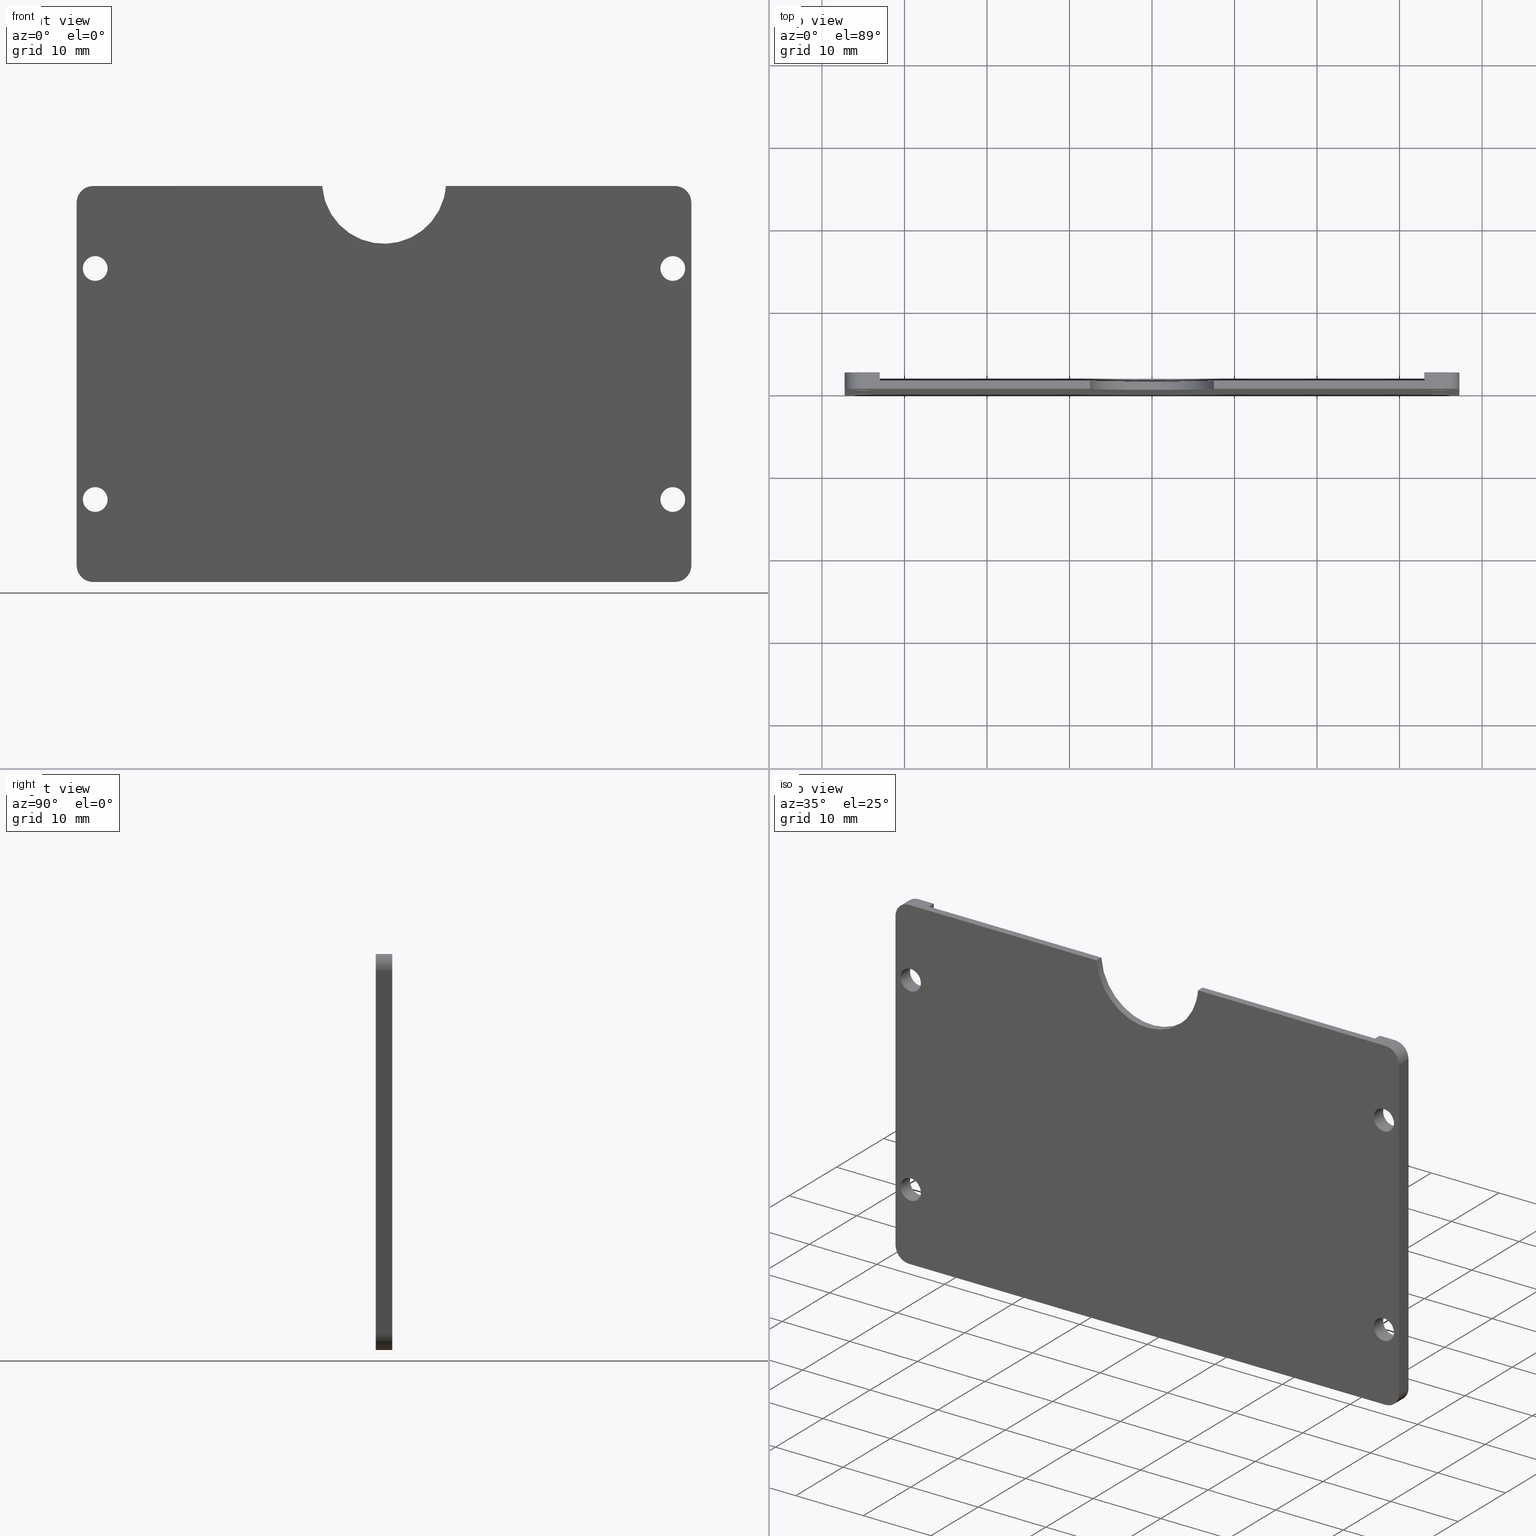
[diagram: canonical four-view strip — front | top / right | iso, engineering-drawing reading convention]
A machine part, canonical four-view strip (front | top / right | iso — engineering-drawing reading convention). The complete STEP part file that produces these views, byte-faithful:
ISO-10303-21;
HEADER;
/****************************************************************
 * Generated by software with PDE/Lib inside                    *
 * PDElib Version 4.4.1-0003, patched  Thursday August 19 11:58 *
 * International Technegroup Inc. (www.iti-oh.com)              *
 ****************************************************************/
FILE_DESCRIPTION((''),'2;1');
FILE_NAME('','2005-12-14T16:48:58',(''),(''),'','CADfix','');
FILE_SCHEMA(('AUTOMOTIVE_DESIGN'));
ENDSEC;
DATA;
#5=APPLICATION_CONTEXT('automotive design');
#6=APPLICATION_PROTOCOL_DEFINITION('Draft International Standard','automotive_design',1998,#5);
#7=PRODUCT_CONTEXT('None',#5,'mechanical');
#8=PRODUCT('holder','','None',(#7));
#9=PRODUCT_RELATED_PRODUCT_CATEGORY('part','description',(#8));
#10=PRODUCT_DEFINITION_FORMATION('None','None',#8);
#11=PRODUCT_DEFINITION_CONTEXT('part definition',#5,'design');
#12=PRODUCT_DEFINITION('None','None',#10,#11);
#18=(NAMED_UNIT(*)PLANE_ANGLE_UNIT()SI_UNIT($,.RADIAN.));
#19=DIMENSIONAL_EXPONENTS(0.0,0.0,0.0,0.0,0.0,0.0,0.0);
#20=PLANE_ANGLE_MEASURE_WITH_UNIT(PLANE_ANGLE_MEASURE(0.017453292500000),#18);
#24=(CONVERSION_BASED_UNIT('DEGREE',#20)NAMED_UNIT(#19)PLANE_ANGLE_UNIT());
#28=(NAMED_UNIT(*)SI_UNIT($,.STERADIAN.)SOLID_ANGLE_UNIT());
#32=(LENGTH_UNIT()NAMED_UNIT(*)SI_UNIT(.MILLI.,.METRE.));
#34=UNCERTAINTY_MEASURE_WITH_UNIT(LENGTH_MEASURE(0.001000000000000),#32,'DISTANCE_ACCURACY_VALUE','');
#36=(GEOMETRIC_REPRESENTATION_CONTEXT(3)GLOBAL_UNCERTAINTY_ASSIGNED_CONTEXT((#34))GLOBAL_UNIT_ASSIGNED_CONTEXT((#24,#28,#32))REPRESENTATION_CONTEXT('None','None'));
#37=AXIS2_PLACEMENT_3D('',#38,#39,#40);
#38=CARTESIAN_POINT('',(0.0,0.0,0.0));
#39=DIRECTION('',(0.0,0.0,1.0));
#40=DIRECTION('',(1.0,0.0,0.0));
#41=ADVANCED_BREP_SHAPE_REPRESENTATION('',(#37,#1406),#36);
#42=PRODUCT_DEFINITION_SHAPE('','',#12);
#43=SHAPE_DEFINITION_REPRESENTATION(#42,#41);
#44=CARTESIAN_POINT('',(33.510485710454503,2.050000000000000,10.177051351985138));
#45=CARTESIAN_POINT('',(33.505418576827083,2.050000000000000,10.134422092956962));
#46=CARTESIAN_POINT('',(33.502797802367198,2.050000000000000,10.091572809302290));
#47=CARTESIAN_POINT('',(33.411224993064913,2.050000000000001,8.594370611669485));
#48=CARTESIAN_POINT('',(34.908427190697722,2.050000000000000,8.502797802367200));
#49=CARTESIAN_POINT('',(36.405629388330517,2.050000000000001,8.411224993064915));
#50=CARTESIAN_POINT('',(36.497202197632802,2.050000000000000,9.908427190697715));
#51=CARTESIAN_POINT('',(33.510485710454503,-0.051250000000000,10.177051351985138));
#52=CARTESIAN_POINT('',(33.505418576827083,-0.051250000000000,10.134422092956962));
#53=CARTESIAN_POINT('',(33.502797802367198,-0.051250000000000,10.091572809302290));
#54=CARTESIAN_POINT('',(33.411224993064913,-0.051250000000000,8.594370611669485));
#55=CARTESIAN_POINT('',(34.908427190697722,-0.051250000000000,8.502797802367200));
#56=CARTESIAN_POINT('',(36.405629388330517,-0.051250000000000,8.411224993064915));
#57=CARTESIAN_POINT('',(36.497202197632802,-0.051250000000000,9.908427190697715));
#65=(BOUNDED_SURFACE()B_SPLINE_SURFACE(2,1,((#44,#51),(#45,#52),(#46,#53),(#47,#54),(#48,#55),(#49,#56),(#50,#57)),.UNSPECIFIED.,.F.,.F.,.U.)B_SPLINE_SURFACE_WITH_KNOTS((3,2,2,3),(2,2),(3.078760800517997,3.141592653589793,4.712388980384690,6.283185307179586),(0.0,2.101250000000000),.UNSPECIFIED.)GEOMETRIC_REPRESENTATION_ITEM()RATIONAL_B_SPLINE_SURFACE(((0.977505800795127,0.977505800795127),(0.988284271247462,0.988284271247462),(1.0,1.0),(0.707106781186548,0.707106781186548),(1.0,1.0),(0.707106781186548,0.707106781186548),(1.0,1.0)))REPRESENTATION_ITEM('')SURFACE());
#66=CARTESIAN_POINT('',(33.510485710496411,-1.029293E-016,10.177051352337809));
#67=VERTEX_POINT('',#66);
#68=CARTESIAN_POINT('',(35.0,0.0,8.500000000000000));
#69=VERTEX_POINT('',#68);
#70=CARTESIAN_POINT('',(33.510485710496411,-1.029293E-016,10.177051352337806));
#71=CARTESIAN_POINT('',(33.499999999999993,0.0,10.088836179834262));
#72=CARTESIAN_POINT('',(33.500000000000000,0.0,10.0));
#73=CARTESIAN_POINT('',(33.500000000000007,0.0,8.500000000000002));
#74=CARTESIAN_POINT('',(35.0,0.0,8.500000000000000));
#82=(BOUNDED_CURVE()B_SPLINE_CURVE(2,(#70,#71,#72,#73,#74),.UNSPECIFIED.,.F.,.U.)B_SPLINE_CURVE_WITH_KNOTS((3,2,3),(0.229562473435616,0.250000000000000,0.500000000000000),.UNSPECIFIED.)CURVE()GEOMETRIC_REPRESENTATION_ITEM()RATIONAL_B_SPLINE_CURVE((0.956026754031026,0.976055948239888,1.0,0.707106781186548,1.0))REPRESENTATION_ITEM(''));
#83=EDGE_CURVE('',#67,#69,#82,.T.);
#84=ORIENTED_EDGE('',*,*,#83,.T.);
#85=CARTESIAN_POINT('',(36.497202197613127,-1.040834E-016,9.908427190376081));
#86=VERTEX_POINT('',#85);
#87=CARTESIAN_POINT('',(35.0,0.0,8.500000000000000));
#88=CARTESIAN_POINT('',(36.411059099751171,0.0,8.500000000000000));
#89=CARTESIAN_POINT('',(36.497202197613134,-1.040834E-016,9.908427190376081));
#97=(BOUNDED_CURVE()B_SPLINE_CURVE(2,(#87,#88,#89),.UNSPECIFIED.,.F.,.U.)B_SPLINE_CURVE_WITH_KNOTS((3,3),(0.500000000000000,0.739332962167835),.UNSPECIFIED.)CURVE()GEOMETRIC_REPRESENTATION_ITEM()RATIONAL_B_SPLINE_CURVE((1.0,0.719603993370018,0.976072041514321))REPRESENTATION_ITEM(''));
#98=EDGE_CURVE('',#69,#86,#97,.T.);
#99=ORIENTED_EDGE('',*,*,#98,.T.);
#100=CARTESIAN_POINT('',(36.497202197613127,2.0,9.908427190376081));
#101=VERTEX_POINT('',#100);
#102=CARTESIAN_POINT('',(36.497202197613127,2.0,9.908427190376081));
#103=CARTESIAN_POINT('',(36.497202197613127,-1.040834E-016,9.908427190376081));
#104=QUASI_UNIFORM_CURVE('',1,(#102,#103),.UNSPECIFIED.,.F.,.U.);
#105=EDGE_CURVE('',#101,#86,#104,.T.);
#106=ORIENTED_EDGE('',*,*,#105,.F.);
#107=CARTESIAN_POINT('',(35.0,2.0,8.500000000000000));
#108=VERTEX_POINT('',#107);
#109=CARTESIAN_POINT('',(35.0,2.0,8.500000000000000));
#110=CARTESIAN_POINT('',(36.411059099751171,2.000000000000000,8.500000000000000));
#111=CARTESIAN_POINT('',(36.497202197613134,2.000000000000000,9.908427190376081));
#119=(BOUNDED_CURVE()B_SPLINE_CURVE(2,(#109,#110,#111),.UNSPECIFIED.,.F.,.U.)B_SPLINE_CURVE_WITH_KNOTS((3,3),(0.500000000000000,0.739332962167835),.UNSPECIFIED.)CURVE()GEOMETRIC_REPRESENTATION_ITEM()RATIONAL_B_SPLINE_CURVE((1.0,0.719603993370018,0.976072041514321))REPRESENTATION_ITEM(''));
#120=EDGE_CURVE('',#108,#101,#119,.T.);
#121=ORIENTED_EDGE('',*,*,#120,.F.);
#122=CARTESIAN_POINT('',(33.510485710496411,2.0,10.177051352337800));
#123=VERTEX_POINT('',#122);
#124=CARTESIAN_POINT('',(33.510485710496411,2.0,10.177051352337804));
#125=CARTESIAN_POINT('',(33.500000000000000,2.000000000000000,10.088836179834260));
#126=CARTESIAN_POINT('',(33.500000000000000,2.0,10.0));
#127=CARTESIAN_POINT('',(33.500000000000007,2.000000000000000,8.500000000000002));
#128=CARTESIAN_POINT('',(35.0,2.0,8.500000000000000));
#136=(BOUNDED_CURVE()B_SPLINE_CURVE(2,(#124,#125,#126,#127,#128),.UNSPECIFIED.,.F.,.U.)B_SPLINE_CURVE_WITH_KNOTS((3,2,3),(0.229562473435616,0.250000000000000,0.500000000000000),.UNSPECIFIED.)CURVE()GEOMETRIC_REPRESENTATION_ITEM()RATIONAL_B_SPLINE_CURVE((0.956026754031027,0.976055948239888,1.0,0.707106781186548,1.0))REPRESENTATION_ITEM(''));
#137=EDGE_CURVE('',#123,#108,#136,.T.);
#138=ORIENTED_EDGE('',*,*,#137,.F.);
#139=CARTESIAN_POINT('',(33.510485710496411,2.0,10.177051352337800));
#140=CARTESIAN_POINT('',(33.510485710496411,-1.029293E-016,10.177051352337809));
#141=QUASI_UNIFORM_CURVE('',1,(#139,#140),.UNSPECIFIED.,.F.,.U.);
#142=EDGE_CURVE('',#123,#67,#141,.T.);
#143=ORIENTED_EDGE('',*,*,#142,.T.);
#144=EDGE_LOOP('',(#84,#99,#106,#121,#138,#143));
#145=FACE_OUTER_BOUND('',#144,.T.);
#146=ADVANCED_FACE('',(#145),#65,.F.);
#147=CARTESIAN_POINT('',(36.497202197632802,2.050000000000000,9.908427190697715));
#148=CARTESIAN_POINT('',(36.588775006935087,2.050000000000001,11.405629388330516));
#149=CARTESIAN_POINT('',(35.091572809302292,2.050000000000000,11.497202197632800));
#150=CARTESIAN_POINT('',(33.677684763740736,2.050000000000000,11.583679295098792));
#151=CARTESIAN_POINT('',(33.510485710454503,2.050000000000000,10.177051351985138));
#152=CARTESIAN_POINT('',(36.497202197632802,-0.051250000000000,9.908427190697715));
#153=CARTESIAN_POINT('',(36.588775006935087,-0.051250000000000,11.405629388330516));
#154=CARTESIAN_POINT('',(35.091572809302292,-0.051250000000000,11.497202197632800));
#155=CARTESIAN_POINT('',(33.677684763740736,-0.051250000000000,11.583679295098792));
#156=CARTESIAN_POINT('',(33.510485710454503,-0.051250000000000,10.177051351985138));
#164=(BOUNDED_SURFACE()B_SPLINE_SURFACE(2,1,((#147,#152),(#148,#153),(#149,#154),(#150,#155),(#151,#156)),.UNSPECIFIED.,.F.,.F.,.U.)B_SPLINE_SURFACE_WITH_KNOTS((3,2,3),(2,2),(0.0,1.570796326794897,3.078760800517997),(0.0,2.101250000000000),.UNSPECIFIED.)GEOMETRIC_REPRESENTATION_ITEM()RATIONAL_B_SPLINE_SURFACE(((1.0,1.0),(0.707106781186548,0.707106781186548),(1.0,1.0),(0.718822509939086,0.718822509939086),(0.977505800795127,0.977505800795127)))REPRESENTATION_ITEM('')SURFACE());
#165=CARTESIAN_POINT('',(35.0,0.0,11.500000000000000));
#166=VERTEX_POINT('',#165);
#167=CARTESIAN_POINT('',(35.0,0.0,11.500000000000000));
#168=CARTESIAN_POINT('',(33.667738211708254,0.0,11.500000000000000));
#169=CARTESIAN_POINT('',(33.510485710496411,-1.029293E-016,10.177051352337806));
#177=(BOUNDED_CURVE()B_SPLINE_CURVE(2,(#167,#168,#169),.UNSPECIFIED.,.F.,.U.)B_SPLINE_CURVE_WITH_KNOTS((3,3),(0.0,0.229562473435616),.UNSPECIFIED.)CURVE()GEOMETRIC_REPRESENTATION_ITEM()RATIONAL_B_SPLINE_CURVE((1.0,0.731050832946660,0.956026754031026))REPRESENTATION_ITEM(''));
#178=EDGE_CURVE('',#166,#67,#177,.T.);
#179=ORIENTED_EDGE('',*,*,#178,.T.);
#180=ORIENTED_EDGE('',*,*,#142,.F.);
#181=CARTESIAN_POINT('',(35.0,2.0,11.500000000000000));
#182=VERTEX_POINT('',#181);
#183=CARTESIAN_POINT('',(35.0,2.0,11.500000000000000));
#184=CARTESIAN_POINT('',(33.667738211708262,2.0,11.500000000000000));
#185=CARTESIAN_POINT('',(33.510485710496404,2.000000000000000,10.177051352337804));
#193=(BOUNDED_CURVE()B_SPLINE_CURVE(2,(#183,#184,#185),.UNSPECIFIED.,.F.,.U.)B_SPLINE_CURVE_WITH_KNOTS((3,3),(0.0,0.229562473435616),.UNSPECIFIED.)CURVE()GEOMETRIC_REPRESENTATION_ITEM()RATIONAL_B_SPLINE_CURVE((1.0,0.731050832946660,0.956026754031026))REPRESENTATION_ITEM(''));
#194=EDGE_CURVE('',#182,#123,#193,.T.);
#195=ORIENTED_EDGE('',*,*,#194,.F.);
#196=CARTESIAN_POINT('',(36.497202197613134,2.000000000000000,9.908427190376081));
#197=CARTESIAN_POINT('',(36.500000000000000,2.000000000000000,9.954170854729581));
#198=CARTESIAN_POINT('',(36.500000000000007,2.0,10.0));
#199=CARTESIAN_POINT('',(36.500000000000007,2.000000000000000,11.500000000000000));
#200=CARTESIAN_POINT('',(35.0,2.0,11.500000000000000));
#208=(BOUNDED_CURVE()B_SPLINE_CURVE(2,(#196,#197,#198,#199,#200),.UNSPECIFIED.,.F.,.U.)B_SPLINE_CURVE_WITH_KNOTS((3,2,3),(0.739332962167834,0.750000000000000,1.0),.UNSPECIFIED.)CURVE()GEOMETRIC_REPRESENTATION_ITEM()RATIONAL_B_SPLINE_CURVE((0.976072041514318,0.987502787816528,1.0,0.707106781186548,1.0))REPRESENTATION_ITEM(''));
#209=EDGE_CURVE('',#101,#182,#208,.T.);
#210=ORIENTED_EDGE('',*,*,#209,.F.);
#211=ORIENTED_EDGE('',*,*,#105,.T.);
#212=CARTESIAN_POINT('',(36.497202197613142,-1.040834E-016,9.908427190376081));
#213=CARTESIAN_POINT('',(36.500000000000000,0.0,9.954170854729583));
#214=CARTESIAN_POINT('',(36.500000000000007,0.0,10.0));
#215=CARTESIAN_POINT('',(36.500000000000007,0.0,11.500000000000000));
#216=CARTESIAN_POINT('',(35.0,0.0,11.500000000000000));
#224=(BOUNDED_CURVE()B_SPLINE_CURVE(2,(#212,#213,#214,#215,#216),.UNSPECIFIED.,.F.,.U.)B_SPLINE_CURVE_WITH_KNOTS((3,2,3),(0.739332962167834,0.750000000000000,1.0),.UNSPECIFIED.)CURVE()GEOMETRIC_REPRESENTATION_ITEM()RATIONAL_B_SPLINE_CURVE((0.976072041514318,0.987502787816528,1.0,0.707106781186548,1.0))REPRESENTATION_ITEM(''));
#225=EDGE_CURVE('',#86,#166,#224,.T.);
#226=ORIENTED_EDGE('',*,*,#225,.T.);
#227=EDGE_LOOP('',(#179,#180,#195,#210,#211,#226));
#228=FACE_OUTER_BOUND('',#227,.T.);
#229=ADVANCED_FACE('',(#228),#164,.F.);
#230=CARTESIAN_POINT('',(33.510485710454503,2.050000000000000,38.177051351985142));
#231=CARTESIAN_POINT('',(33.505418576827083,2.050000000000000,38.134422092956960));
#232=CARTESIAN_POINT('',(33.502797802367198,2.050000000000000,38.091572809302292));
#233=CARTESIAN_POINT('',(33.411224993064913,2.050000000000001,36.594370611669483));
#234=CARTESIAN_POINT('',(34.908427190697722,2.050000000000000,36.502797802367198));
#235=CARTESIAN_POINT('',(36.405629388330517,2.050000000000001,36.411224993064927));
#236=CARTESIAN_POINT('',(36.497202197632802,2.050000000000000,37.908427190697722));
#237=CARTESIAN_POINT('',(33.510485710454503,-0.051250000000000,38.177051351985142));
#238=CARTESIAN_POINT('',(33.505418576827083,-0.051250000000000,38.134422092956960));
#239=CARTESIAN_POINT('',(33.502797802367198,-0.051250000000000,38.091572809302292));
#240=CARTESIAN_POINT('',(33.411224993064913,-0.051250000000000,36.594370611669483));
#241=CARTESIAN_POINT('',(34.908427190697722,-0.051250000000000,36.502797802367198));
#242=CARTESIAN_POINT('',(36.405629388330517,-0.051250000000000,36.411224993064927));
#243=CARTESIAN_POINT('',(36.497202197632802,-0.051250000000000,37.908427190697722));
#251=(BOUNDED_SURFACE()B_SPLINE_SURFACE(2,1,((#230,#237),(#231,#238),(#232,#239),(#233,#240),(#234,#241),(#235,#242),(#236,#243)),.UNSPECIFIED.,.F.,.F.,.U.)B_SPLINE_SURFACE_WITH_KNOTS((3,2,2,3),(2,2),(3.078760800517997,3.141592653589793,4.712388980384690,6.283185307179586),(0.0,2.101250000000000),.UNSPECIFIED.)GEOMETRIC_REPRESENTATION_ITEM()RATIONAL_B_SPLINE_SURFACE(((0.977505800795127,0.977505800795127),(0.988284271247462,0.988284271247462),(1.0,1.0),(0.707106781186548,0.707106781186548),(1.0,1.0),(0.707106781186548,0.707106781186548),(1.0,1.0)))REPRESENTATION_ITEM('')SURFACE());
#252=CARTESIAN_POINT('',(33.510485710496411,-1.029293E-016,38.177051352337813));
#253=VERTEX_POINT('',#252);
#254=CARTESIAN_POINT('',(35.0,0.0,36.500000000000000));
#255=VERTEX_POINT('',#254);
#256=CARTESIAN_POINT('',(33.510485710496411,-1.029293E-016,38.177051352337806));
#257=CARTESIAN_POINT('',(33.499999999999993,0.0,38.088836179834267));
#258=CARTESIAN_POINT('',(33.500000000000000,0.0,38.0));
#259=CARTESIAN_POINT('',(33.500000000000007,0.0,36.500000000000007));
#260=CARTESIAN_POINT('',(35.0,0.0,36.500000000000000));
#268=(BOUNDED_CURVE()B_SPLINE_CURVE(2,(#256,#257,#258,#259,#260),.UNSPECIFIED.,.F.,.U.)B_SPLINE_CURVE_WITH_KNOTS((3,2,3),(0.229562473435616,0.250000000000000,0.500000000000000),.UNSPECIFIED.)CURVE()GEOMETRIC_REPRESENTATION_ITEM()RATIONAL_B_SPLINE_CURVE((0.956026754031026,0.976055948239888,1.0,0.707106781186548,1.0))REPRESENTATION_ITEM(''));
#269=EDGE_CURVE('',#253,#255,#268,.T.);
#270=ORIENTED_EDGE('',*,*,#269,.T.);
#271=CARTESIAN_POINT('',(36.497202197613127,-1.040834E-016,37.908427190376088));
#272=VERTEX_POINT('',#271);
#273=CARTESIAN_POINT('',(35.0,0.0,36.500000000000000));
#274=CARTESIAN_POINT('',(36.411059099751171,0.0,36.500000000000014));
#275=CARTESIAN_POINT('',(36.497202197613134,-1.040834E-016,37.908427190376088));
#283=(BOUNDED_CURVE()B_SPLINE_CURVE(2,(#273,#274,#275),.UNSPECIFIED.,.F.,.U.)B_SPLINE_CURVE_WITH_KNOTS((3,3),(0.500000000000000,0.739332962167835),.UNSPECIFIED.)CURVE()GEOMETRIC_REPRESENTATION_ITEM()RATIONAL_B_SPLINE_CURVE((1.0,0.719603993370018,0.976072041514321))REPRESENTATION_ITEM(''));
#284=EDGE_CURVE('',#255,#272,#283,.T.);
#285=ORIENTED_EDGE('',*,*,#284,.T.);
#286=CARTESIAN_POINT('',(36.497202197613127,2.0,37.908427190376081));
#287=VERTEX_POINT('',#286);
#288=CARTESIAN_POINT('',(36.497202197613127,2.0,37.908427190376081));
#289=CARTESIAN_POINT('',(36.497202197613127,-1.040834E-016,37.908427190376088));
#290=QUASI_UNIFORM_CURVE('',1,(#288,#289),.UNSPECIFIED.,.F.,.U.);
#291=EDGE_CURVE('',#287,#272,#290,.T.);
#292=ORIENTED_EDGE('',*,*,#291,.F.);
#293=CARTESIAN_POINT('',(35.0,2.0,36.500000000000000));
#294=VERTEX_POINT('',#293);
#295=CARTESIAN_POINT('',(35.0,2.0,36.500000000000000));
#296=CARTESIAN_POINT('',(36.411059099751142,2.000000000000000,36.500000000000000));
#297=CARTESIAN_POINT('',(36.497202197613134,2.000000000000000,37.908427190376081));
#305=(BOUNDED_CURVE()B_SPLINE_CURVE(2,(#295,#296,#297),.UNSPECIFIED.,.F.,.U.)B_SPLINE_CURVE_WITH_KNOTS((3,3),(0.500000000000000,0.739332962167833),.UNSPECIFIED.)CURVE()GEOMETRIC_REPRESENTATION_ITEM()RATIONAL_B_SPLINE_CURVE((1.0,0.719603993370021,0.976072041514316))REPRESENTATION_ITEM(''));
#306=EDGE_CURVE('',#294,#287,#305,.T.);
#307=ORIENTED_EDGE('',*,*,#306,.F.);
#308=CARTESIAN_POINT('',(33.510485710496418,2.0,38.177051352337799));
#309=VERTEX_POINT('',#308);
#310=CARTESIAN_POINT('',(33.510485710496411,2.000000000000000,38.177051352337799));
#311=CARTESIAN_POINT('',(33.499999999999993,2.0,38.088836179834260));
#312=CARTESIAN_POINT('',(33.500000000000000,2.0,38.0));
#313=CARTESIAN_POINT('',(33.500000000000007,2.000000000000000,36.500000000000007));
#314=CARTESIAN_POINT('',(35.0,2.0,36.500000000000000));
#322=(BOUNDED_CURVE()B_SPLINE_CURVE(2,(#310,#311,#312,#313,#314),.UNSPECIFIED.,.F.,.U.)B_SPLINE_CURVE_WITH_KNOTS((3,2,3),(0.229562473435616,0.250000000000000,0.500000000000000),.UNSPECIFIED.)CURVE()GEOMETRIC_REPRESENTATION_ITEM()RATIONAL_B_SPLINE_CURVE((0.956026754031026,0.976055948239888,1.0,0.707106781186548,1.0))REPRESENTATION_ITEM(''));
#323=EDGE_CURVE('',#309,#294,#322,.T.);
#324=ORIENTED_EDGE('',*,*,#323,.F.);
#325=CARTESIAN_POINT('',(33.510485710496418,2.0,38.177051352337799));
#326=CARTESIAN_POINT('',(33.510485710496411,-1.029293E-016,38.177051352337813));
#327=QUASI_UNIFORM_CURVE('',1,(#325,#326),.UNSPECIFIED.,.F.,.U.);
#328=EDGE_CURVE('',#309,#253,#327,.T.);
#329=ORIENTED_EDGE('',*,*,#328,.T.);
#330=EDGE_LOOP('',(#270,#285,#292,#307,#324,#329));
#331=FACE_OUTER_BOUND('',#330,.T.);
#332=ADVANCED_FACE('',(#331),#251,.F.);
#333=CARTESIAN_POINT('',(36.497202197632802,2.050000000000000,37.908427190697722));
#334=CARTESIAN_POINT('',(36.588775006935087,2.050000000000001,39.405629388330524));
#335=CARTESIAN_POINT('',(35.091572809302292,2.050000000000000,39.497202197632802));
#336=CARTESIAN_POINT('',(33.677684763740736,2.050000000000000,39.583679295098790));
#337=CARTESIAN_POINT('',(33.510485710454503,2.050000000000000,38.177051351985142));
#338=CARTESIAN_POINT('',(36.497202197632802,-0.051250000000000,37.908427190697722));
#339=CARTESIAN_POINT('',(36.588775006935087,-0.051250000000000,39.405629388330524));
#340=CARTESIAN_POINT('',(35.091572809302292,-0.051250000000000,39.497202197632802));
#341=CARTESIAN_POINT('',(33.677684763740736,-0.051250000000000,39.583679295098790));
#342=CARTESIAN_POINT('',(33.510485710454503,-0.051250000000000,38.177051351985142));
#350=(BOUNDED_SURFACE()B_SPLINE_SURFACE(2,1,((#333,#338),(#334,#339),(#335,#340),(#336,#341),(#337,#342)),.UNSPECIFIED.,.F.,.F.,.U.)B_SPLINE_SURFACE_WITH_KNOTS((3,2,3),(2,2),(0.0,1.570796326794897,3.078760800517997),(0.0,2.101250000000000),.UNSPECIFIED.)GEOMETRIC_REPRESENTATION_ITEM()RATIONAL_B_SPLINE_SURFACE(((1.0,1.0),(0.707106781186548,0.707106781186548),(1.0,1.0),(0.718822509939086,0.718822509939086),(0.977505800795127,0.977505800795127)))REPRESENTATION_ITEM('')SURFACE());
#351=CARTESIAN_POINT('',(35.0,0.0,39.500000000000000));
#352=VERTEX_POINT('',#351);
#353=CARTESIAN_POINT('',(35.0,0.0,39.500000000000000));
#354=CARTESIAN_POINT('',(33.667738211708254,0.0,39.500000000000007));
#355=CARTESIAN_POINT('',(33.510485710496411,-1.029293E-016,38.177051352337806));
#363=(BOUNDED_CURVE()B_SPLINE_CURVE(2,(#353,#354,#355),.UNSPECIFIED.,.F.,.U.)B_SPLINE_CURVE_WITH_KNOTS((3,3),(0.0,0.229562473435616),.UNSPECIFIED.)CURVE()GEOMETRIC_REPRESENTATION_ITEM()RATIONAL_B_SPLINE_CURVE((1.0,0.731050832946660,0.956026754031026))REPRESENTATION_ITEM(''));
#364=EDGE_CURVE('',#352,#253,#363,.T.);
#365=ORIENTED_EDGE('',*,*,#364,.T.);
#366=ORIENTED_EDGE('',*,*,#328,.F.);
#367=CARTESIAN_POINT('',(35.0,2.0,39.500000000000000));
#368=VERTEX_POINT('',#367);
#369=CARTESIAN_POINT('',(35.0,2.0,39.500000000000000));
#370=CARTESIAN_POINT('',(33.667738211708254,2.000000000000000,39.500000000000007));
#371=CARTESIAN_POINT('',(33.510485710496411,2.000000000000000,38.177051352337799));
#379=(BOUNDED_CURVE()B_SPLINE_CURVE(2,(#369,#370,#371),.UNSPECIFIED.,.F.,.U.)B_SPLINE_CURVE_WITH_KNOTS((3,3),(0.0,0.229562473435616),.UNSPECIFIED.)CURVE()GEOMETRIC_REPRESENTATION_ITEM()RATIONAL_B_SPLINE_CURVE((1.0,0.731050832946660,0.956026754031026))REPRESENTATION_ITEM(''));
#380=EDGE_CURVE('',#368,#309,#379,.T.);
#381=ORIENTED_EDGE('',*,*,#380,.F.);
#382=CARTESIAN_POINT('',(36.497202197613142,2.0,37.908427190376081));
#383=CARTESIAN_POINT('',(36.500000000000007,2.000000000000000,37.954170854729576));
#384=CARTESIAN_POINT('',(36.500000000000007,2.0,38.0));
#385=CARTESIAN_POINT('',(36.500000000000007,2.000000000000000,39.500000000000000));
#386=CARTESIAN_POINT('',(35.0,2.0,39.500000000000000));
#394=(BOUNDED_CURVE()B_SPLINE_CURVE(2,(#382,#383,#384,#385,#386),.UNSPECIFIED.,.F.,.U.)B_SPLINE_CURVE_WITH_KNOTS((3,2,3),(0.739332962167834,0.750000000000000,1.0),.UNSPECIFIED.)CURVE()GEOMETRIC_REPRESENTATION_ITEM()RATIONAL_B_SPLINE_CURVE((0.976072041514318,0.987502787816528,1.0,0.707106781186548,1.0))REPRESENTATION_ITEM(''));
#395=EDGE_CURVE('',#287,#368,#394,.T.);
#396=ORIENTED_EDGE('',*,*,#395,.F.);
#397=ORIENTED_EDGE('',*,*,#291,.T.);
#398=CARTESIAN_POINT('',(36.497202197613134,-1.040834E-016,37.908427190376088));
#399=CARTESIAN_POINT('',(36.500000000000007,0.0,37.954170854729583));
#400=CARTESIAN_POINT('',(36.500000000000007,0.0,38.0));
#401=CARTESIAN_POINT('',(36.500000000000007,0.0,39.500000000000000));
#402=CARTESIAN_POINT('',(35.0,0.0,39.500000000000000));
#410=(BOUNDED_CURVE()B_SPLINE_CURVE(2,(#398,#399,#400,#401,#402),.UNSPECIFIED.,.F.,.U.)B_SPLINE_CURVE_WITH_KNOTS((3,2,3),(0.739332962167835,0.750000000000000,1.0),.UNSPECIFIED.)CURVE()GEOMETRIC_REPRESENTATION_ITEM()RATIONAL_B_SPLINE_CURVE((0.976072041514319,0.987502787816529,1.0,0.707106781186548,1.0))REPRESENTATION_ITEM(''));
#411=EDGE_CURVE('',#272,#352,#410,.T.);
#412=ORIENTED_EDGE('',*,*,#411,.T.);
#413=EDGE_LOOP('',(#365,#366,#381,#396,#397,#412));
#414=FACE_OUTER_BOUND('',#413,.T.);
#415=ADVANCED_FACE('',(#414),#350,.F.);
#416=CARTESIAN_POINT('',(-36.489514289545518,2.050000000000000,10.177051351985138));
#417=CARTESIAN_POINT('',(-36.494581423172910,2.050000000000000,10.134422092956962));
#418=CARTESIAN_POINT('',(-36.497202197632802,2.050000000000000,10.091572809302290));
#419=CARTESIAN_POINT('',(-36.588775006935087,2.050000000000001,8.594370611669485));
#420=CARTESIAN_POINT('',(-35.091572809302292,2.050000000000000,8.502797802367200));
#421=CARTESIAN_POINT('',(-33.594370611669490,2.050000000000001,8.411224993064915));
#422=CARTESIAN_POINT('',(-33.502797802367198,2.050000000000000,9.908427190697715));
#423=CARTESIAN_POINT('',(-36.489514289545518,-0.051250000000000,10.177051351985138));
#424=CARTESIAN_POINT('',(-36.494581423172910,-0.051250000000000,10.134422092956962));
#425=CARTESIAN_POINT('',(-36.497202197632802,-0.051250000000000,10.091572809302290));
#426=CARTESIAN_POINT('',(-36.588775006935087,-0.051250000000000,8.594370611669485));
#427=CARTESIAN_POINT('',(-35.091572809302292,-0.051250000000000,8.502797802367200));
#428=CARTESIAN_POINT('',(-33.594370611669490,-0.051250000000000,8.411224993064915));
#429=CARTESIAN_POINT('',(-33.502797802367198,-0.051250000000000,9.908427190697715));
#437=(BOUNDED_SURFACE()B_SPLINE_SURFACE(2,1,((#416,#423),(#417,#424),(#418,#425),(#419,#426),(#420,#427),(#421,#428),(#422,#429)),.UNSPECIFIED.,.F.,.F.,.U.)B_SPLINE_SURFACE_WITH_KNOTS((3,2,2,3),(2,2),(3.078760800517997,3.141592653589793,4.712388980384690,6.283185307179586),(0.0,2.101250000000000),.UNSPECIFIED.)GEOMETRIC_REPRESENTATION_ITEM()RATIONAL_B_SPLINE_SURFACE(((0.977505800795127,0.977505800795127),(0.988284271247462,0.988284271247462),(1.0,1.0),(0.707106781186548,0.707106781186548),(1.0,1.0),(0.707106781186548,0.707106781186548),(1.0,1.0)))REPRESENTATION_ITEM('')SURFACE());
#438=CARTESIAN_POINT('',(-36.489514289503589,-1.029293E-016,10.177051352337809));
#439=VERTEX_POINT('',#438);
#440=CARTESIAN_POINT('',(-35.0,0.0,8.500000000000000));
#441=VERTEX_POINT('',#440);
#442=CARTESIAN_POINT('',(-36.489514289503589,-1.029293E-016,10.177051352337806));
#443=CARTESIAN_POINT('',(-36.500000000000007,0.0,10.088836179834262));
#444=CARTESIAN_POINT('',(-36.500000000000007,0.0,10.0));
#445=CARTESIAN_POINT('',(-36.500000000000007,0.0,8.500000000000002));
#446=CARTESIAN_POINT('',(-35.0,0.0,8.500000000000000));
#454=(BOUNDED_CURVE()B_SPLINE_CURVE(2,(#442,#443,#444,#445,#446),.UNSPECIFIED.,.F.,.U.)B_SPLINE_CURVE_WITH_KNOTS((3,2,3),(0.229562473435616,0.250000000000000,0.500000000000000),.UNSPECIFIED.)CURVE()GEOMETRIC_REPRESENTATION_ITEM()RATIONAL_B_SPLINE_CURVE((0.956026754031026,0.976055948239888,1.0,0.707106781186548,1.0))REPRESENTATION_ITEM(''));
#455=EDGE_CURVE('',#439,#441,#454,.T.);
#456=ORIENTED_EDGE('',*,*,#455,.T.);
#457=CARTESIAN_POINT('',(-33.502797802386873,-1.040834E-016,9.908427190376081));
#458=VERTEX_POINT('',#457);
#459=CARTESIAN_POINT('',(-35.0,0.0,8.500000000000000));
#460=CARTESIAN_POINT('',(-33.588940900248836,0.0,8.500000000000000));
#461=CARTESIAN_POINT('',(-33.502797802386866,-1.040834E-016,9.908427190376081));
#469=(BOUNDED_CURVE()B_SPLINE_CURVE(2,(#459,#460,#461),.UNSPECIFIED.,.F.,.U.)B_SPLINE_CURVE_WITH_KNOTS((3,3),(0.500000000000000,0.739332962167835),.UNSPECIFIED.)CURVE()GEOMETRIC_REPRESENTATION_ITEM()RATIONAL_B_SPLINE_CURVE((1.0,0.719603993370018,0.976072041514321))REPRESENTATION_ITEM(''));
#470=EDGE_CURVE('',#441,#458,#469,.T.);
#471=ORIENTED_EDGE('',*,*,#470,.T.);
#472=CARTESIAN_POINT('',(-33.502797802386873,2.0,9.908427190376081));
#473=VERTEX_POINT('',#472);
#474=CARTESIAN_POINT('',(-33.502797802386873,2.0,9.908427190376081));
#475=CARTESIAN_POINT('',(-33.502797802386873,-1.040834E-016,9.908427190376081));
#476=QUASI_UNIFORM_CURVE('',1,(#474,#475),.UNSPECIFIED.,.F.,.U.);
#477=EDGE_CURVE('',#473,#458,#476,.T.);
#478=ORIENTED_EDGE('',*,*,#477,.F.);
#479=CARTESIAN_POINT('',(-35.0,2.0,8.500000000000000));
#480=VERTEX_POINT('',#479);
#481=CARTESIAN_POINT('',(-35.0,2.0,8.500000000000000));
#482=CARTESIAN_POINT('',(-33.588940900248836,2.000000000000000,8.500000000000000));
#483=CARTESIAN_POINT('',(-33.502797802386866,2.000000000000000,9.908427190376081));
#491=(BOUNDED_CURVE()B_SPLINE_CURVE(2,(#481,#482,#483),.UNSPECIFIED.,.F.,.U.)B_SPLINE_CURVE_WITH_KNOTS((3,3),(0.500000000000000,0.739332962167835),.UNSPECIFIED.)CURVE()GEOMETRIC_REPRESENTATION_ITEM()RATIONAL_B_SPLINE_CURVE((1.0,0.719603993370018,0.976072041514321))REPRESENTATION_ITEM(''));
#492=EDGE_CURVE('',#480,#473,#491,.T.);
#493=ORIENTED_EDGE('',*,*,#492,.F.);
#494=CARTESIAN_POINT('',(-36.489514289503582,2.0,10.177051352337809));
#495=VERTEX_POINT('',#494);
#496=CARTESIAN_POINT('',(-36.489514289503582,2.000000000000000,10.177051352337806));
#497=CARTESIAN_POINT('',(-36.500000000000007,2.000000000000000,10.088836179834262));
#498=CARTESIAN_POINT('',(-36.500000000000007,2.0,10.0));
#499=CARTESIAN_POINT('',(-36.500000000000007,2.000000000000000,8.500000000000002));
#500=CARTESIAN_POINT('',(-35.0,2.0,8.500000000000000));
#508=(BOUNDED_CURVE()B_SPLINE_CURVE(2,(#496,#497,#498,#499,#500),.UNSPECIFIED.,.F.,.U.)B_SPLINE_CURVE_WITH_KNOTS((3,2,3),(0.229562473435615,0.250000000000000,0.500000000000000),.UNSPECIFIED.)CURVE()GEOMETRIC_REPRESENTATION_ITEM()RATIONAL_B_SPLINE_CURVE((0.956026754031026,0.976055948239888,1.0,0.707106781186548,1.0))REPRESENTATION_ITEM(''));
#509=EDGE_CURVE('',#495,#480,#508,.T.);
#510=ORIENTED_EDGE('',*,*,#509,.F.);
#511=CARTESIAN_POINT('',(-36.489514289503582,2.0,10.177051352337809));
#512=CARTESIAN_POINT('',(-36.489514289503589,-1.029293E-016,10.177051352337809));
#513=QUASI_UNIFORM_CURVE('',1,(#511,#512),.UNSPECIFIED.,.F.,.U.);
#514=EDGE_CURVE('',#495,#439,#513,.T.);
#515=ORIENTED_EDGE('',*,*,#514,.T.);
#516=EDGE_LOOP('',(#456,#471,#478,#493,#510,#515));
#517=FACE_OUTER_BOUND('',#516,.T.);
#518=ADVANCED_FACE('',(#517),#437,.F.);
#519=CARTESIAN_POINT('',(-33.502797802367198,2.050000000000000,9.908427190697715));
#520=CARTESIAN_POINT('',(-33.411224993064913,2.050000000000001,11.405629388330516));
#521=CARTESIAN_POINT('',(-34.908427190697722,2.050000000000000,11.497202197632800));
#522=CARTESIAN_POINT('',(-36.322315236259250,2.050000000000000,11.583679295098792));
#523=CARTESIAN_POINT('',(-36.489514289545518,2.050000000000000,10.177051351985138));
#524=CARTESIAN_POINT('',(-33.502797802367198,-0.051250000000000,9.908427190697715));
#525=CARTESIAN_POINT('',(-33.411224993064913,-0.051250000000000,11.405629388330516));
#526=CARTESIAN_POINT('',(-34.908427190697722,-0.051250000000000,11.497202197632800));
#527=CARTESIAN_POINT('',(-36.322315236259250,-0.051250000000000,11.583679295098792));
#528=CARTESIAN_POINT('',(-36.489514289545518,-0.051250000000000,10.177051351985138));
#536=(BOUNDED_SURFACE()B_SPLINE_SURFACE(2,1,((#519,#524),(#520,#525),(#521,#526),(#522,#527),(#523,#528)),.UNSPECIFIED.,.F.,.F.,.U.)B_SPLINE_SURFACE_WITH_KNOTS((3,2,3),(2,2),(0.0,1.570796326794897,3.078760800517997),(0.0,2.101250000000000),.UNSPECIFIED.)GEOMETRIC_REPRESENTATION_ITEM()RATIONAL_B_SPLINE_SURFACE(((1.0,1.0),(0.707106781186548,0.707106781186548),(1.0,1.0),(0.718822509939086,0.718822509939086),(0.977505800795127,0.977505800795127)))REPRESENTATION_ITEM('')SURFACE());
#537=CARTESIAN_POINT('',(-35.0,0.0,11.500000000000000));
#538=VERTEX_POINT('',#537);
#539=CARTESIAN_POINT('',(-35.0,0.0,11.500000000000000));
#540=CARTESIAN_POINT('',(-36.332261788291738,0.0,11.500000000000000));
#541=CARTESIAN_POINT('',(-36.489514289503589,-1.029293E-016,10.177051352337806));
#549=(BOUNDED_CURVE()B_SPLINE_CURVE(2,(#539,#540,#541),.UNSPECIFIED.,.F.,.U.)B_SPLINE_CURVE_WITH_KNOTS((3,3),(0.0,0.229562473435616),.UNSPECIFIED.)CURVE()GEOMETRIC_REPRESENTATION_ITEM()RATIONAL_B_SPLINE_CURVE((1.0,0.731050832946660,0.956026754031026))REPRESENTATION_ITEM(''));
#550=EDGE_CURVE('',#538,#439,#549,.T.);
#551=ORIENTED_EDGE('',*,*,#550,.T.);
#552=ORIENTED_EDGE('',*,*,#514,.F.);
#553=CARTESIAN_POINT('',(-35.0,2.0,11.500000000000000));
#554=VERTEX_POINT('',#553);
#555=CARTESIAN_POINT('',(-35.0,2.0,11.500000000000000));
#556=CARTESIAN_POINT('',(-36.332261788291753,2.000000000000000,11.499999999999998));
#557=CARTESIAN_POINT('',(-36.489514289503582,2.0,10.177051352337806));
#565=(BOUNDED_CURVE()B_SPLINE_CURVE(2,(#555,#556,#557),.UNSPECIFIED.,.F.,.U.)B_SPLINE_CURVE_WITH_KNOTS((3,3),(0.0,0.229562473435615),.UNSPECIFIED.)CURVE()GEOMETRIC_REPRESENTATION_ITEM()RATIONAL_B_SPLINE_CURVE((1.0,0.731050832946660,0.956026754031026))REPRESENTATION_ITEM(''));
#566=EDGE_CURVE('',#554,#495,#565,.T.);
#567=ORIENTED_EDGE('',*,*,#566,.F.);
#568=CARTESIAN_POINT('',(-33.502797802386866,2.0,9.908427190376081));
#569=CARTESIAN_POINT('',(-33.500000000000000,2.0,9.954170854729583));
#570=CARTESIAN_POINT('',(-33.500000000000000,2.0,10.0));
#571=CARTESIAN_POINT('',(-33.500000000000007,2.000000000000000,11.500000000000000));
#572=CARTESIAN_POINT('',(-35.0,2.0,11.500000000000000));
#580=(BOUNDED_CURVE()B_SPLINE_CURVE(2,(#568,#569,#570,#571,#572),.UNSPECIFIED.,.F.,.U.)B_SPLINE_CURVE_WITH_KNOTS((3,2,3),(0.739332962167834,0.750000000000000,1.0),.UNSPECIFIED.)CURVE()GEOMETRIC_REPRESENTATION_ITEM()RATIONAL_B_SPLINE_CURVE((0.976072041514318,0.987502787816528,1.0,0.707106781186548,1.0))REPRESENTATION_ITEM(''));
#581=EDGE_CURVE('',#473,#554,#580,.T.);
#582=ORIENTED_EDGE('',*,*,#581,.F.);
#583=ORIENTED_EDGE('',*,*,#477,.T.);
#584=CARTESIAN_POINT('',(-33.502797802386866,-1.040834E-016,9.908427190376081));
#585=CARTESIAN_POINT('',(-33.500000000000000,0.0,9.954170854729583));
#586=CARTESIAN_POINT('',(-33.500000000000000,0.0,10.0));
#587=CARTESIAN_POINT('',(-33.500000000000007,0.0,11.500000000000000));
#588=CARTESIAN_POINT('',(-35.0,0.0,11.500000000000000));
#596=(BOUNDED_CURVE()B_SPLINE_CURVE(2,(#584,#585,#586,#587,#588),.UNSPECIFIED.,.F.,.U.)B_SPLINE_CURVE_WITH_KNOTS((3,2,3),(0.739332962167834,0.750000000000000,1.0),.UNSPECIFIED.)CURVE()GEOMETRIC_REPRESENTATION_ITEM()RATIONAL_B_SPLINE_CURVE((0.976072041514318,0.987502787816528,1.0,0.707106781186548,1.0))REPRESENTATION_ITEM(''));
#597=EDGE_CURVE('',#458,#538,#596,.T.);
#598=ORIENTED_EDGE('',*,*,#597,.T.);
#599=EDGE_LOOP('',(#551,#552,#567,#582,#583,#598));
#600=FACE_OUTER_BOUND('',#599,.T.);
#601=ADVANCED_FACE('',(#600),#536,.F.);
#602=CARTESIAN_POINT('',(-36.489514289545518,2.050000000000000,38.177051351985142));
#603=CARTESIAN_POINT('',(-36.494581423172910,2.050000000000000,38.134422092956960));
#604=CARTESIAN_POINT('',(-36.497202197632802,2.050000000000000,38.091572809302292));
#605=CARTESIAN_POINT('',(-36.588775006935087,2.050000000000001,36.594370611669483));
#606=CARTESIAN_POINT('',(-35.091572809302292,2.050000000000000,36.502797802367198));
#607=CARTESIAN_POINT('',(-33.594370611669490,2.050000000000001,36.411224993064927));
#608=CARTESIAN_POINT('',(-33.502797802367198,2.050000000000000,37.908427190697722));
#609=CARTESIAN_POINT('',(-36.489514289545518,-0.051250000000000,38.177051351985142));
#610=CARTESIAN_POINT('',(-36.494581423172910,-0.051250000000000,38.134422092956960));
#611=CARTESIAN_POINT('',(-36.497202197632802,-0.051250000000000,38.091572809302292));
#612=CARTESIAN_POINT('',(-36.588775006935087,-0.051250000000000,36.594370611669483));
#613=CARTESIAN_POINT('',(-35.091572809302292,-0.051250000000000,36.502797802367198));
#614=CARTESIAN_POINT('',(-33.594370611669490,-0.051250000000000,36.411224993064927));
#615=CARTESIAN_POINT('',(-33.502797802367198,-0.051250000000000,37.908427190697722));
#623=(BOUNDED_SURFACE()B_SPLINE_SURFACE(2,1,((#602,#609),(#603,#610),(#604,#611),(#605,#612),(#606,#613),(#607,#614),(#608,#615)),.UNSPECIFIED.,.F.,.F.,.U.)B_SPLINE_SURFACE_WITH_KNOTS((3,2,2,3),(2,2),(3.078760800517997,3.141592653589793,4.712388980384690,6.283185307179586),(0.0,2.101250000000000),.UNSPECIFIED.)GEOMETRIC_REPRESENTATION_ITEM()RATIONAL_B_SPLINE_SURFACE(((0.977505800795127,0.977505800795127),(0.988284271247462,0.988284271247462),(1.0,1.0),(0.707106781186548,0.707106781186548),(1.0,1.0),(0.707106781186548,0.707106781186548),(1.0,1.0)))REPRESENTATION_ITEM('')SURFACE());
#624=CARTESIAN_POINT('',(-36.489514289503589,-1.029293E-016,38.177051352337799));
#625=VERTEX_POINT('',#624);
#626=CARTESIAN_POINT('',(-35.0,0.0,36.500000000000000));
#627=VERTEX_POINT('',#626);
#628=CARTESIAN_POINT('',(-36.489514289503589,-1.029293E-016,38.177051352337799));
#629=CARTESIAN_POINT('',(-36.500000000000007,0.0,38.088836179834267));
#630=CARTESIAN_POINT('',(-36.500000000000007,0.0,38.0));
#631=CARTESIAN_POINT('',(-36.500000000000007,0.0,36.500000000000007));
#632=CARTESIAN_POINT('',(-35.0,0.0,36.500000000000000));
#640=(BOUNDED_CURVE()B_SPLINE_CURVE(2,(#628,#629,#630,#631,#632),.UNSPECIFIED.,.F.,.U.)B_SPLINE_CURVE_WITH_KNOTS((3,2,3),(0.229562473435616,0.250000000000000,0.500000000000000),.UNSPECIFIED.)CURVE()GEOMETRIC_REPRESENTATION_ITEM()RATIONAL_B_SPLINE_CURVE((0.956026754031027,0.976055948239888,1.0,0.707106781186548,1.0))REPRESENTATION_ITEM(''));
#641=EDGE_CURVE('',#625,#627,#640,.T.);
#642=ORIENTED_EDGE('',*,*,#641,.T.);
#643=CARTESIAN_POINT('',(-33.502797802386873,-1.040834E-016,37.908427190376067));
#644=VERTEX_POINT('',#643);
#645=CARTESIAN_POINT('',(-35.0,0.0,36.500000000000000));
#646=CARTESIAN_POINT('',(-33.588940900248851,0.0,36.500000000000000));
#647=CARTESIAN_POINT('',(-33.502797802386873,-1.040834E-016,37.908427190376081));
#655=(BOUNDED_CURVE()B_SPLINE_CURVE(2,(#645,#646,#647),.UNSPECIFIED.,.F.,.U.)B_SPLINE_CURVE_WITH_KNOTS((3,3),(0.500000000000000,0.739332962167833),.UNSPECIFIED.)CURVE()GEOMETRIC_REPRESENTATION_ITEM()RATIONAL_B_SPLINE_CURVE((1.0,0.719603993370021,0.976072041514316))REPRESENTATION_ITEM(''));
#656=EDGE_CURVE('',#627,#644,#655,.T.);
#657=ORIENTED_EDGE('',*,*,#656,.T.);
#658=CARTESIAN_POINT('',(-33.502797802386873,2.0,37.908427190376081));
#659=VERTEX_POINT('',#658);
#660=CARTESIAN_POINT('',(-33.502797802386873,2.0,37.908427190376081));
#661=CARTESIAN_POINT('',(-33.502797802386873,-1.040834E-016,37.908427190376067));
#662=QUASI_UNIFORM_CURVE('',1,(#660,#661),.UNSPECIFIED.,.F.,.U.);
#663=EDGE_CURVE('',#659,#644,#662,.T.);
#664=ORIENTED_EDGE('',*,*,#663,.F.);
#665=CARTESIAN_POINT('',(-35.0,2.0,36.500000000000000));
#666=VERTEX_POINT('',#665);
#667=CARTESIAN_POINT('',(-35.0,2.0,36.500000000000000));
#668=CARTESIAN_POINT('',(-33.588940900248836,2.000000000000000,36.500000000000014));
#669=CARTESIAN_POINT('',(-33.502797802386866,2.000000000000000,37.908427190376081));
#677=(BOUNDED_CURVE()B_SPLINE_CURVE(2,(#667,#668,#669),.UNSPECIFIED.,.F.,.U.)B_SPLINE_CURVE_WITH_KNOTS((3,3),(0.500000000000000,0.739332962167835),.UNSPECIFIED.)CURVE()GEOMETRIC_REPRESENTATION_ITEM()RATIONAL_B_SPLINE_CURVE((1.0,0.719603993370018,0.976072041514321))REPRESENTATION_ITEM(''));
#678=EDGE_CURVE('',#666,#659,#677,.T.);
#679=ORIENTED_EDGE('',*,*,#678,.F.);
#680=CARTESIAN_POINT('',(-36.489514289503589,2.0,38.177051352337799));
#681=VERTEX_POINT('',#680);
#682=CARTESIAN_POINT('',(-36.489514289503589,2.000000000000000,38.177051352337791));
#683=CARTESIAN_POINT('',(-36.500000000000007,2.000000000000000,38.088836179834253));
#684=CARTESIAN_POINT('',(-36.500000000000007,2.0,38.0));
#685=CARTESIAN_POINT('',(-36.500000000000007,2.000000000000000,36.500000000000007));
#686=CARTESIAN_POINT('',(-35.0,2.0,36.500000000000000));
#694=(BOUNDED_CURVE()B_SPLINE_CURVE(2,(#682,#683,#684,#685,#686),.UNSPECIFIED.,.F.,.U.)B_SPLINE_CURVE_WITH_KNOTS((3,2,3),(0.229562473435616,0.250000000000000,0.500000000000000),.UNSPECIFIED.)CURVE()GEOMETRIC_REPRESENTATION_ITEM()RATIONAL_B_SPLINE_CURVE((0.956026754031027,0.976055948239889,1.0,0.707106781186548,1.0))REPRESENTATION_ITEM(''));
#695=EDGE_CURVE('',#681,#666,#694,.T.);
#696=ORIENTED_EDGE('',*,*,#695,.F.);
#697=CARTESIAN_POINT('',(-36.489514289503589,2.0,38.177051352337799));
#698=CARTESIAN_POINT('',(-36.489514289503589,-1.029293E-016,38.177051352337799));
#699=QUASI_UNIFORM_CURVE('',1,(#697,#698),.UNSPECIFIED.,.F.,.U.);
#700=EDGE_CURVE('',#681,#625,#699,.T.);
#701=ORIENTED_EDGE('',*,*,#700,.T.);
#702=EDGE_LOOP('',(#642,#657,#664,#679,#696,#701));
#703=FACE_OUTER_BOUND('',#702,.T.);
#704=ADVANCED_FACE('',(#703),#623,.F.);
#705=CARTESIAN_POINT('',(-33.502797802367198,2.050000000000000,37.908427190697722));
#706=CARTESIAN_POINT('',(-33.411224993064913,2.050000000000001,39.405629388330524));
#707=CARTESIAN_POINT('',(-34.908427190697722,2.050000000000000,39.497202197632802));
#708=CARTESIAN_POINT('',(-36.322315236259250,2.050000000000000,39.583679295098790));
#709=CARTESIAN_POINT('',(-36.489514289545518,2.050000000000000,38.177051351985142));
#710=CARTESIAN_POINT('',(-33.502797802367198,-0.051250000000000,37.908427190697722));
#711=CARTESIAN_POINT('',(-33.411224993064913,-0.051250000000000,39.405629388330524));
#712=CARTESIAN_POINT('',(-34.908427190697722,-0.051250000000000,39.497202197632802));
#713=CARTESIAN_POINT('',(-36.322315236259250,-0.051250000000000,39.583679295098790));
#714=CARTESIAN_POINT('',(-36.489514289545518,-0.051250000000000,38.177051351985142));
#722=(BOUNDED_SURFACE()B_SPLINE_SURFACE(2,1,((#705,#710),(#706,#711),(#707,#712),(#708,#713),(#709,#714)),.UNSPECIFIED.,.F.,.F.,.U.)B_SPLINE_SURFACE_WITH_KNOTS((3,2,3),(2,2),(0.0,1.570796326794897,3.078760800517997),(0.0,2.101250000000000),.UNSPECIFIED.)GEOMETRIC_REPRESENTATION_ITEM()RATIONAL_B_SPLINE_SURFACE(((1.0,1.0),(0.707106781186548,0.707106781186548),(1.0,1.0),(0.718822509939086,0.718822509939086),(0.977505800795127,0.977505800795127)))REPRESENTATION_ITEM('')SURFACE());
#723=CARTESIAN_POINT('',(-35.0,0.0,39.500000000000000));
#724=VERTEX_POINT('',#723);
#725=CARTESIAN_POINT('',(-35.0,0.0,39.500000000000000));
#726=CARTESIAN_POINT('',(-36.332261788291738,0.0,39.499999999999993));
#727=CARTESIAN_POINT('',(-36.489514289503582,-1.029293E-016,38.177051352337799));
#735=(BOUNDED_CURVE()B_SPLINE_CURVE(2,(#725,#726,#727),.UNSPECIFIED.,.F.,.U.)B_SPLINE_CURVE_WITH_KNOTS((3,3),(0.0,0.229562473435616),.UNSPECIFIED.)CURVE()GEOMETRIC_REPRESENTATION_ITEM()RATIONAL_B_SPLINE_CURVE((1.0,0.731050832946659,0.956026754031027))REPRESENTATION_ITEM(''));
#736=EDGE_CURVE('',#724,#625,#735,.T.);
#737=ORIENTED_EDGE('',*,*,#736,.T.);
#738=ORIENTED_EDGE('',*,*,#700,.F.);
#739=CARTESIAN_POINT('',(-35.0,2.0,39.500000000000000));
#740=VERTEX_POINT('',#739);
#741=CARTESIAN_POINT('',(-35.0,2.0,39.500000000000000));
#742=CARTESIAN_POINT('',(-36.332261788291760,2.0,39.499999999999986));
#743=CARTESIAN_POINT('',(-36.489514289503589,2.000000000000000,38.177051352337791));
#751=(BOUNDED_CURVE()B_SPLINE_CURVE(2,(#741,#742,#743),.UNSPECIFIED.,.F.,.U.)B_SPLINE_CURVE_WITH_KNOTS((3,3),(0.0,0.229562473435616),.UNSPECIFIED.)CURVE()GEOMETRIC_REPRESENTATION_ITEM()RATIONAL_B_SPLINE_CURVE((1.0,0.731050832946659,0.956026754031027))REPRESENTATION_ITEM(''));
#752=EDGE_CURVE('',#740,#681,#751,.T.);
#753=ORIENTED_EDGE('',*,*,#752,.F.);
#754=CARTESIAN_POINT('',(-33.502797802386866,2.000000000000000,37.908427190376088));
#755=CARTESIAN_POINT('',(-33.499999999999993,2.000000000000000,37.954170854729583));
#756=CARTESIAN_POINT('',(-33.500000000000000,2.0,38.0));
#757=CARTESIAN_POINT('',(-33.500000000000007,2.000000000000000,39.500000000000000));
#758=CARTESIAN_POINT('',(-35.0,2.0,39.500000000000000));
#766=(BOUNDED_CURVE()B_SPLINE_CURVE(2,(#754,#755,#756,#757,#758),.UNSPECIFIED.,.F.,.U.)B_SPLINE_CURVE_WITH_KNOTS((3,2,3),(0.739332962167834,0.750000000000000,1.0),.UNSPECIFIED.)CURVE()GEOMETRIC_REPRESENTATION_ITEM()RATIONAL_B_SPLINE_CURVE((0.976072041514318,0.987502787816528,1.0,0.707106781186548,1.0))REPRESENTATION_ITEM(''));
#767=EDGE_CURVE('',#659,#740,#766,.T.);
#768=ORIENTED_EDGE('',*,*,#767,.F.);
#769=ORIENTED_EDGE('',*,*,#663,.T.);
#770=CARTESIAN_POINT('',(-33.502797802386873,-1.040834E-016,37.908427190376074));
#771=CARTESIAN_POINT('',(-33.500000000000007,0.0,37.954170854729576));
#772=CARTESIAN_POINT('',(-33.500000000000000,0.0,38.0));
#773=CARTESIAN_POINT('',(-33.500000000000007,0.0,39.500000000000000));
#774=CARTESIAN_POINT('',(-35.0,0.0,39.500000000000000));
#782=(BOUNDED_CURVE()B_SPLINE_CURVE(2,(#770,#771,#772,#773,#774),.UNSPECIFIED.,.F.,.U.)B_SPLINE_CURVE_WITH_KNOTS((3,2,3),(0.739332962167834,0.750000000000000,1.0),.UNSPECIFIED.)CURVE()GEOMETRIC_REPRESENTATION_ITEM()RATIONAL_B_SPLINE_CURVE((0.976072041514317,0.987502787816528,1.0,0.707106781186548,1.0))REPRESENTATION_ITEM(''));
#783=EDGE_CURVE('',#644,#724,#782,.T.);
#784=ORIENTED_EDGE('',*,*,#783,.T.);
#785=EDGE_LOOP('',(#737,#738,#753,#768,#769,#784));
#786=FACE_OUTER_BOUND('',#785,.T.);
#787=ADVANCED_FACE('',(#786),#722,.F.);
#788=CARTESIAN_POINT('',(-36.296699872079202,1.0,50.247749912781281));
#789=CARTESIAN_POINT('',(36.296701642337140,1.0,50.247749912781281));
#790=CARTESIAN_POINT('',(-36.296699872079202,1.0,0.752248880224672));
#791=CARTESIAN_POINT('',(36.296701642337140,1.0,0.752248880224672));
#792=B_SPLINE_SURFACE_WITH_KNOTS('',1,1,((#788,#790),(#789,#791)),.UNSPECIFIED.,.F.,.F.,.U.,(2,2),(2,2),(0.0,72.593401514416342),(0.0,49.495501032556611),.UNSPECIFIED.);
#793=CARTESIAN_POINT('',(-33.0,1.0,3.0));
#794=VERTEX_POINT('',#793);
#795=CARTESIAN_POINT('',(-33.0,1.0,48.0));
#796=VERTEX_POINT('',#795);
#797=CARTESIAN_POINT('',(-33.0,1.0,3.0));
#798=CARTESIAN_POINT('',(-33.0,1.0,48.0));
#799=QUASI_UNIFORM_CURVE('',1,(#797,#798),.UNSPECIFIED.,.F.,.U.);
#800=EDGE_CURVE('',#794,#796,#799,.T.);
#801=ORIENTED_EDGE('',*,*,#800,.T.);
#802=CARTESIAN_POINT('',(-7.499999999999900,1.0,48.0));
#803=VERTEX_POINT('',#802);
#804=CARTESIAN_POINT('',(-33.0,1.0,48.0));
#805=CARTESIAN_POINT('',(-7.499999999999900,1.0,48.0));
#806=QUASI_UNIFORM_CURVE('',1,(#804,#805),.UNSPECIFIED.,.F.,.U.);
#807=EDGE_CURVE('',#796,#803,#806,.T.);
#808=ORIENTED_EDGE('',*,*,#807,.T.);
#809=CARTESIAN_POINT('',(7.499999857678900,1.0,47.999999869832202));
#810=VERTEX_POINT('',#809);
#811=CARTESIAN_POINT('',(-7.499999999999900,1.0,48.0));
#812=CARTESIAN_POINT('',(-7.016666671166889,1.0,41.000000065175691));
#813=CARTESIAN_POINT('',(-0.000000069831099,1.0,40.999999999999993));
#814=CARTESIAN_POINT('',(7.016666531504689,1.0,40.999999934824295));
#815=CARTESIAN_POINT('',(7.499999857678890,1.0,47.999999869832202));
#823=(BOUNDED_CURVE()B_SPLINE_CURVE(2,(#811,#812,#813,#814,#815),.UNSPECIFIED.,.F.,.U.)B_SPLINE_CURVE_WITH_KNOTS((3,2,3),(0.0,0.500000000000000,1.0),.UNSPECIFIED.)CURVE()GEOMETRIC_REPRESENTATION_ITEM()RATIONAL_B_SPLINE_CURVE((1.0,0.731055264944358,1.0,0.731055264944358,1.0))REPRESENTATION_ITEM(''));
#824=EDGE_CURVE('',#803,#810,#823,.T.);
#825=ORIENTED_EDGE('',*,*,#824,.T.);
#826=CARTESIAN_POINT('',(33.0,1.0,48.0));
#827=VERTEX_POINT('',#826);
#828=CARTESIAN_POINT('',(7.499999857678900,1.0,47.999999869832202));
#829=CARTESIAN_POINT('',(33.0,1.0,48.0));
#830=QUASI_UNIFORM_CURVE('',1,(#828,#829),.UNSPECIFIED.,.F.,.U.);
#831=EDGE_CURVE('',#810,#827,#830,.T.);
#832=ORIENTED_EDGE('',*,*,#831,.T.);
#833=CARTESIAN_POINT('',(33.0,1.0,3.0));
#834=VERTEX_POINT('',#833);
#835=CARTESIAN_POINT('',(33.0,1.0,48.0));
#836=CARTESIAN_POINT('',(33.0,1.0,3.0));
#837=QUASI_UNIFORM_CURVE('',1,(#835,#836),.UNSPECIFIED.,.F.,.U.);
#838=EDGE_CURVE('',#827,#834,#837,.T.);
#839=ORIENTED_EDGE('',*,*,#838,.T.);
#840=CARTESIAN_POINT('',(33.0,1.0,3.0));
#841=CARTESIAN_POINT('',(-33.0,1.0,3.0));
#842=QUASI_UNIFORM_CURVE('',1,(#840,#841),.UNSPECIFIED.,.F.,.U.);
#843=EDGE_CURVE('',#834,#794,#842,.T.);
#844=ORIENTED_EDGE('',*,*,#843,.T.);
#845=EDGE_LOOP('',(#801,#808,#825,#832,#839,#844));
#846=FACE_OUTER_BOUND('',#845,.T.);
#847=ADVANCED_FACE('',(#846),#792,.T.);
#848=CARTESIAN_POINT('',(36.296699872079202,0.950050001938194,3.0));
#849=CARTESIAN_POINT('',(-36.296701642337140,0.950050001938194,3.0));
#850=CARTESIAN_POINT('',(36.296699872079202,2.049950024883896,3.0));
#851=CARTESIAN_POINT('',(-36.296701642337140,2.049950024883896,3.0));
#852=B_SPLINE_SURFACE_WITH_KNOTS('',1,1,((#848,#850),(#849,#851)),.UNSPECIFIED.,.F.,.F.,.U.,(2,2),(2,2),(0.0,72.593401514416342),(0.041708334948495,0.958291687403247),.UNSPECIFIED.);
#853=CARTESIAN_POINT('',(33.0,2.0,3.0));
#854=VERTEX_POINT('',#853);
#855=CARTESIAN_POINT('',(-33.0,2.0,3.0));
#856=VERTEX_POINT('',#855);
#857=CARTESIAN_POINT('',(33.0,2.0,3.0));
#858=CARTESIAN_POINT('',(-33.0,2.0,3.0));
#859=QUASI_UNIFORM_CURVE('',1,(#857,#858),.UNSPECIFIED.,.F.,.U.);
#860=EDGE_CURVE('',#854,#856,#859,.T.);
#861=ORIENTED_EDGE('',*,*,#860,.T.);
#862=CARTESIAN_POINT('',(-33.0,1.0,3.0));
#863=CARTESIAN_POINT('',(-33.0,2.0,3.0));
#864=QUASI_UNIFORM_CURVE('',1,(#862,#863),.UNSPECIFIED.,.F.,.U.);
#865=EDGE_CURVE('',#794,#856,#864,.T.);
#866=ORIENTED_EDGE('',*,*,#865,.F.);
#867=ORIENTED_EDGE('',*,*,#843,.F.);
#868=CARTESIAN_POINT('',(33.0,1.0,3.0));
#869=CARTESIAN_POINT('',(33.0,2.0,3.0));
#870=QUASI_UNIFORM_CURVE('',1,(#868,#869),.UNSPECIFIED.,.F.,.U.);
#871=EDGE_CURVE('',#834,#854,#870,.T.);
#872=ORIENTED_EDGE('',*,*,#871,.T.);
#873=EDGE_LOOP('',(#861,#866,#867,#872));
#874=FACE_OUTER_BOUND('',#873,.T.);
#875=ADVANCED_FACE('',(#874),#852,.F.);
#876=CARTESIAN_POINT('',(33.0,0.950050001938194,50.247749912781273));
#877=CARTESIAN_POINT('',(33.0,0.950050001938194,0.752248880224675));
#878=CARTESIAN_POINT('',(33.0,2.049950024883896,50.247749912781273));
#879=CARTESIAN_POINT('',(33.0,2.049950024883896,0.752248880224675));
#880=B_SPLINE_SURFACE_WITH_KNOTS('',1,1,((#876,#878),(#877,#879)),.UNSPECIFIED.,.F.,.F.,.U.,(2,2),(2,2),(0.0,49.495501032556596),(0.041708334948495,0.958291687403247),.UNSPECIFIED.);
#881=CARTESIAN_POINT('',(33.0,2.0,48.0));
#882=VERTEX_POINT('',#881);
#883=CARTESIAN_POINT('',(33.0,2.0,48.0));
#884=CARTESIAN_POINT('',(33.0,2.0,3.0));
#885=QUASI_UNIFORM_CURVE('',1,(#883,#884),.UNSPECIFIED.,.F.,.U.);
#886=EDGE_CURVE('',#882,#854,#885,.T.);
#887=ORIENTED_EDGE('',*,*,#886,.T.);
#888=ORIENTED_EDGE('',*,*,#871,.F.);
#889=ORIENTED_EDGE('',*,*,#838,.F.);
#890=CARTESIAN_POINT('',(33.0,1.0,48.0));
#891=CARTESIAN_POINT('',(33.0,2.0,48.0));
#892=QUASI_UNIFORM_CURVE('',1,(#890,#891),.UNSPECIFIED.,.F.,.U.);
#893=EDGE_CURVE('',#827,#882,#892,.T.);
#894=ORIENTED_EDGE('',*,*,#893,.T.);
#895=EDGE_LOOP('',(#887,#888,#889,#894));
#896=FACE_OUTER_BOUND('',#895,.T.);
#897=ADVANCED_FACE('',(#896),#880,.F.);
#898=CARTESIAN_POINT('',(-33.0,0.950050001938194,0.752250087218731));
#899=CARTESIAN_POINT('',(-33.0,0.950050001938194,50.247751119775330));
#900=CARTESIAN_POINT('',(-33.0,2.049950024883896,0.752250087218731));
#901=CARTESIAN_POINT('',(-33.0,2.049950024883896,50.247751119775330));
#902=B_SPLINE_SURFACE_WITH_KNOTS('',1,1,((#898,#900),(#899,#901)),.UNSPECIFIED.,.F.,.F.,.U.,(2,2),(2,2),(0.0,49.495501032556596),(0.041708334948495,0.958291687403247),.UNSPECIFIED.);
#903=CARTESIAN_POINT('',(-33.0,2.0,48.0));
#904=VERTEX_POINT('',#903);
#905=CARTESIAN_POINT('',(-33.0,2.0,3.0));
#906=CARTESIAN_POINT('',(-33.0,2.0,48.0));
#907=QUASI_UNIFORM_CURVE('',1,(#905,#906),.UNSPECIFIED.,.F.,.U.);
#908=EDGE_CURVE('',#856,#904,#907,.T.);
#909=ORIENTED_EDGE('',*,*,#908,.T.);
#910=CARTESIAN_POINT('',(-33.0,1.0,48.0));
#911=CARTESIAN_POINT('',(-33.0,2.0,48.0));
#912=QUASI_UNIFORM_CURVE('',1,(#910,#911),.UNSPECIFIED.,.F.,.U.);
#913=EDGE_CURVE('',#796,#904,#912,.T.);
#914=ORIENTED_EDGE('',*,*,#913,.F.);
#915=ORIENTED_EDGE('',*,*,#800,.F.);
#916=ORIENTED_EDGE('',*,*,#865,.T.);
#917=EDGE_LOOP('',(#909,#914,#915,#916));
#918=FACE_OUTER_BOUND('',#917,.T.);
#919=ADVANCED_FACE('',(#918),#902,.F.);
#920=CARTESIAN_POINT('',(-40.971274855604548,0.0,50.397599906966683));
#921=CARTESIAN_POINT('',(40.971276853850263,0.0,50.397599906966683));
#922=CARTESIAN_POINT('',(-40.971274855604541,0.0,-2.397601194427014));
#923=CARTESIAN_POINT('',(40.971276853850263,0.0,-2.397601194427014));
#924=B_SPLINE_SURFACE_WITH_KNOTS('',1,1,((#920,#922),(#921,#923)),.UNSPECIFIED.,.F.,.F.,.U.,(2,2),(2,2),(0.0,81.942551709454804),(0.0,52.795201101393687),.UNSPECIFIED.);
#925=CARTESIAN_POINT('',(-35.250000000000000,0.0,48.0));
#926=VERTEX_POINT('',#925);
#927=CARTESIAN_POINT('',(-7.499999857678900,0.0,47.999999869832301));
#928=VERTEX_POINT('',#927);
#929=CARTESIAN_POINT('',(-35.250000000000000,0.0,48.0));
#930=CARTESIAN_POINT('',(-7.499999857678900,0.0,47.999999869832301));
#931=QUASI_UNIFORM_CURVE('',1,(#929,#930),.UNSPECIFIED.,.F.,.U.);
#932=EDGE_CURVE('',#926,#928,#931,.T.);
#933=ORIENTED_EDGE('',*,*,#932,.F.);
#934=CARTESIAN_POINT('',(-37.250000000000000,0.0,46.0));
#935=VERTEX_POINT('',#934);
#936=CARTESIAN_POINT('',(-35.250000000000000,0.0,48.0));
#937=CARTESIAN_POINT('',(-37.250000000000000,0.0,48.000000000000014));
#938=CARTESIAN_POINT('',(-37.250000000000000,0.0,46.0));
#946=(BOUNDED_CURVE()B_SPLINE_CURVE(2,(#936,#937,#938),.UNSPECIFIED.,.F.,.U.)CURVE()GEOMETRIC_REPRESENTATION_ITEM()QUASI_UNIFORM_CURVE()RATIONAL_B_SPLINE_CURVE((1.0,0.707106781186548,1.0))REPRESENTATION_ITEM(''));
#947=EDGE_CURVE('',#926,#935,#946,.T.);
#948=ORIENTED_EDGE('',*,*,#947,.T.);
#949=CARTESIAN_POINT('',(-37.250000000000000,0.0,2.0));
#950=VERTEX_POINT('',#949);
#951=CARTESIAN_POINT('',(-37.250000000000000,0.0,2.0));
#952=CARTESIAN_POINT('',(-37.250000000000000,0.0,46.0));
#953=QUASI_UNIFORM_CURVE('',1,(#951,#952),.UNSPECIFIED.,.F.,.U.);
#954=EDGE_CURVE('',#950,#935,#953,.T.);
#955=ORIENTED_EDGE('',*,*,#954,.F.);
#956=CARTESIAN_POINT('',(-35.250000000000000,0.0,0.0));
#957=VERTEX_POINT('',#956);
#958=CARTESIAN_POINT('',(-37.250000000000000,0.0,2.0));
#959=CARTESIAN_POINT('',(-37.250000000000000,0.0,0.0));
#960=CARTESIAN_POINT('',(-35.250000000000000,0.0,0.0));
#968=(BOUNDED_CURVE()B_SPLINE_CURVE(2,(#958,#959,#960),.UNSPECIFIED.,.F.,.U.)CURVE()GEOMETRIC_REPRESENTATION_ITEM()QUASI_UNIFORM_CURVE()RATIONAL_B_SPLINE_CURVE((1.0,0.707106781186548,1.0))REPRESENTATION_ITEM(''));
#969=EDGE_CURVE('',#950,#957,#968,.T.);
#970=ORIENTED_EDGE('',*,*,#969,.T.);
#971=CARTESIAN_POINT('',(35.250000000000000,0.0,0.0));
#972=VERTEX_POINT('',#971);
#973=CARTESIAN_POINT('',(35.250000000000000,0.0,0.0));
#974=CARTESIAN_POINT('',(-35.250000000000000,0.0,0.0));
#975=QUASI_UNIFORM_CURVE('',1,(#973,#974),.UNSPECIFIED.,.F.,.U.);
#976=EDGE_CURVE('',#972,#957,#975,.T.);
#977=ORIENTED_EDGE('',*,*,#976,.F.);
#978=CARTESIAN_POINT('',(37.250000000000000,0.0,2.0));
#979=VERTEX_POINT('',#978);
#980=CARTESIAN_POINT('',(35.250000000000000,0.0,0.0));
#981=CARTESIAN_POINT('',(37.250000000000000,0.0,0.0));
#982=CARTESIAN_POINT('',(37.250000000000000,0.0,2.0));
#990=(BOUNDED_CURVE()B_SPLINE_CURVE(2,(#980,#981,#982),.UNSPECIFIED.,.F.,.U.)CURVE()GEOMETRIC_REPRESENTATION_ITEM()QUASI_UNIFORM_CURVE()RATIONAL_B_SPLINE_CURVE((1.0,0.707106781186548,1.0))REPRESENTATION_ITEM(''));
#991=EDGE_CURVE('',#972,#979,#990,.T.);
#992=ORIENTED_EDGE('',*,*,#991,.T.);
#993=CARTESIAN_POINT('',(37.250000000000000,0.0,46.0));
#994=VERTEX_POINT('',#993);
#995=CARTESIAN_POINT('',(37.250000000000000,0.0,46.0));
#996=CARTESIAN_POINT('',(37.250000000000000,0.0,2.0));
#997=QUASI_UNIFORM_CURVE('',1,(#995,#996),.UNSPECIFIED.,.F.,.U.);
#998=EDGE_CURVE('',#994,#979,#997,.T.);
#999=ORIENTED_EDGE('',*,*,#998,.F.);
#1000=CARTESIAN_POINT('',(35.250000000000000,0.0,48.0));
#1001=VERTEX_POINT('',#1000);
#1002=CARTESIAN_POINT('',(37.250000000000000,0.0,46.0));
#1003=CARTESIAN_POINT('',(37.250000000000000,0.0,48.000000000000014));
#1004=CARTESIAN_POINT('',(35.250000000000000,0.0,48.0));
#1012=(BOUNDED_CURVE()B_SPLINE_CURVE(2,(#1002,#1003,#1004),.UNSPECIFIED.,.F.,.U.)CURVE()GEOMETRIC_REPRESENTATION_ITEM()QUASI_UNIFORM_CURVE()RATIONAL_B_SPLINE_CURVE((1.0,0.707106781186548,1.0))REPRESENTATION_ITEM(''));
#1013=EDGE_CURVE('',#994,#1001,#1012,.T.);
#1014=ORIENTED_EDGE('',*,*,#1013,.T.);
#1015=CARTESIAN_POINT('',(7.499999857678900,0.0,47.999999869832202));
#1016=VERTEX_POINT('',#1015);
#1017=CARTESIAN_POINT('',(7.499999857678900,0.0,47.999999869832202));
#1018=CARTESIAN_POINT('',(35.250000000000000,0.0,48.0));
#1019=QUASI_UNIFORM_CURVE('',1,(#1017,#1018),.UNSPECIFIED.,.F.,.U.);
#1020=EDGE_CURVE('',#1016,#1001,#1019,.T.);
#1021=ORIENTED_EDGE('',*,*,#1020,.F.);
#1022=CARTESIAN_POINT('',(-7.499999857678897,0.0,47.999999869832301));
#1023=CARTESIAN_POINT('',(-7.016666536005011,0.0,41.0));
#1024=CARTESIAN_POINT('',(0.0,0.0,40.999999999999993));
#1025=CARTESIAN_POINT('',(7.016666536004917,0.0,41.0));
#1026=CARTESIAN_POINT('',(7.499999857678890,0.0,47.999999869832202));
#1034=(BOUNDED_CURVE()B_SPLINE_CURVE(2,(#1022,#1023,#1024,#1025,#1026),.UNSPECIFIED.,.F.,.U.)B_SPLINE_CURVE_WITH_KNOTS((3,2,3),(0.0,0.500000000000000,1.0),.UNSPECIFIED.)CURVE()GEOMETRIC_REPRESENTATION_ITEM()RATIONAL_B_SPLINE_CURVE((1.0,0.731055268113277,1.0,0.731055268113277,1.0))REPRESENTATION_ITEM(''));
#1035=EDGE_CURVE('',#928,#1016,#1034,.T.);
#1036=ORIENTED_EDGE('',*,*,#1035,.F.);
#1037=EDGE_LOOP('',(#933,#948,#955,#970,#977,#992,#999,#1014,#1021,#1036));
#1038=FACE_OUTER_BOUND('',#1037,.T.);
#1039=ORIENTED_EDGE('',*,*,#656,.F.);
#1040=ORIENTED_EDGE('',*,*,#641,.F.);
#1041=ORIENTED_EDGE('',*,*,#736,.F.);
#1042=ORIENTED_EDGE('',*,*,#783,.F.);
#1043=EDGE_LOOP('',(#1039,#1040,#1041,#1042));
#1044=FACE_BOUND('',#1043,.T.);
#1045=ORIENTED_EDGE('',*,*,#470,.F.);
#1046=ORIENTED_EDGE('',*,*,#455,.F.);
#1047=ORIENTED_EDGE('',*,*,#550,.F.);
#1048=ORIENTED_EDGE('',*,*,#597,.F.);
#1049=EDGE_LOOP('',(#1045,#1046,#1047,#1048));
#1050=FACE_BOUND('',#1049,.T.);
#1051=ORIENTED_EDGE('',*,*,#284,.F.);
#1052=ORIENTED_EDGE('',*,*,#269,.F.);
#1053=ORIENTED_EDGE('',*,*,#364,.F.);
#1054=ORIENTED_EDGE('',*,*,#411,.F.);
#1055=EDGE_LOOP('',(#1051,#1052,#1053,#1054));
#1056=FACE_BOUND('',#1055,.T.);
#1057=ORIENTED_EDGE('',*,*,#98,.F.);
#1058=ORIENTED_EDGE('',*,*,#83,.F.);
#1059=ORIENTED_EDGE('',*,*,#178,.F.);
#1060=ORIENTED_EDGE('',*,*,#225,.F.);
#1061=EDGE_LOOP('',(#1057,#1058,#1059,#1060));
#1062=FACE_BOUND('',#1061,.T.);
#1063=ADVANCED_FACE('',(#1038,#1044,#1050,#1056,#1062),#924,.F.);
#1064=CARTESIAN_POINT('',(-40.971274855604548,2.0,50.397599906966697));
#1065=CARTESIAN_POINT('',(40.971276853850263,2.0,50.397599906966697));
#1066=CARTESIAN_POINT('',(-40.971274855604541,2.0,-2.397601194427014));
#1067=CARTESIAN_POINT('',(40.971276853850263,2.0,-2.397601194427014));
#1068=B_SPLINE_SURFACE_WITH_KNOTS('',1,1,((#1064,#1066),(#1065,#1067)),.UNSPECIFIED.,.F.,.F.,.U.,(2,2),(2,2),(0.0,81.942551709454804),(0.0,52.795201101393708),.UNSPECIFIED.);
#1069=CARTESIAN_POINT('',(-35.250000000000000,2.0,48.0));
#1070=VERTEX_POINT('',#1069);
#1071=CARTESIAN_POINT('',(-35.250000000000000,2.0,48.0));
#1072=CARTESIAN_POINT('',(-33.0,2.0,48.0));
#1073=QUASI_UNIFORM_CURVE('',1,(#1071,#1072),.UNSPECIFIED.,.F.,.U.);
#1074=EDGE_CURVE('',#1070,#904,#1073,.T.);
#1075=ORIENTED_EDGE('',*,*,#1074,.T.);
#1076=ORIENTED_EDGE('',*,*,#908,.F.);
#1077=ORIENTED_EDGE('',*,*,#860,.F.);
#1078=ORIENTED_EDGE('',*,*,#886,.F.);
#1079=CARTESIAN_POINT('',(35.250000000000000,2.0,48.0));
#1080=VERTEX_POINT('',#1079);
#1081=CARTESIAN_POINT('',(33.0,2.0,48.0));
#1082=CARTESIAN_POINT('',(35.250000000000000,2.0,48.0));
#1083=QUASI_UNIFORM_CURVE('',1,(#1081,#1082),.UNSPECIFIED.,.F.,.U.);
#1084=EDGE_CURVE('',#882,#1080,#1083,.T.);
#1085=ORIENTED_EDGE('',*,*,#1084,.T.);
#1086=CARTESIAN_POINT('',(37.250000000000000,2.0,46.0));
#1087=VERTEX_POINT('',#1086);
#1088=CARTESIAN_POINT('',(37.250000000000000,2.0,46.0));
#1089=CARTESIAN_POINT('',(37.250000000000000,2.000000000000000,48.000000000000014));
#1090=CARTESIAN_POINT('',(35.250000000000000,2.0,48.0));
#1098=(BOUNDED_CURVE()B_SPLINE_CURVE(2,(#1088,#1089,#1090),.UNSPECIFIED.,.F.,.U.)CURVE()GEOMETRIC_REPRESENTATION_ITEM()QUASI_UNIFORM_CURVE()RATIONAL_B_SPLINE_CURVE((1.0,0.707106781186548,1.0))REPRESENTATION_ITEM(''));
#1099=EDGE_CURVE('',#1087,#1080,#1098,.T.);
#1100=ORIENTED_EDGE('',*,*,#1099,.F.);
#1101=CARTESIAN_POINT('',(37.250000000000000,2.0,2.0));
#1102=VERTEX_POINT('',#1101);
#1103=CARTESIAN_POINT('',(37.250000000000000,2.0,46.0));
#1104=CARTESIAN_POINT('',(37.250000000000000,2.0,2.0));
#1105=QUASI_UNIFORM_CURVE('',1,(#1103,#1104),.UNSPECIFIED.,.F.,.U.);
#1106=EDGE_CURVE('',#1087,#1102,#1105,.T.);
#1107=ORIENTED_EDGE('',*,*,#1106,.T.);
#1108=CARTESIAN_POINT('',(35.250000000000000,2.0,0.0));
#1109=VERTEX_POINT('',#1108);
#1110=CARTESIAN_POINT('',(35.250000000000000,2.0,0.0));
#1111=CARTESIAN_POINT('',(37.250000000000000,2.000000000000000,0.0));
#1112=CARTESIAN_POINT('',(37.250000000000000,2.0,2.0));
#1120=(BOUNDED_CURVE()B_SPLINE_CURVE(2,(#1110,#1111,#1112),.UNSPECIFIED.,.F.,.U.)CURVE()GEOMETRIC_REPRESENTATION_ITEM()QUASI_UNIFORM_CURVE()RATIONAL_B_SPLINE_CURVE((1.0,0.707106781186548,1.0))REPRESENTATION_ITEM(''));
#1121=EDGE_CURVE('',#1109,#1102,#1120,.T.);
#1122=ORIENTED_EDGE('',*,*,#1121,.F.);
#1123=CARTESIAN_POINT('',(-35.250000000000000,2.0,0.0));
#1124=VERTEX_POINT('',#1123);
#1125=CARTESIAN_POINT('',(35.250000000000000,2.0,0.0));
#1126=CARTESIAN_POINT('',(-35.250000000000000,2.0,0.0));
#1127=QUASI_UNIFORM_CURVE('',1,(#1125,#1126),.UNSPECIFIED.,.F.,.U.);
#1128=EDGE_CURVE('',#1109,#1124,#1127,.T.);
#1129=ORIENTED_EDGE('',*,*,#1128,.T.);
#1130=CARTESIAN_POINT('',(-37.250000000000000,2.0,2.0));
#1131=VERTEX_POINT('',#1130);
#1132=CARTESIAN_POINT('',(-37.250000000000000,2.0,2.0));
#1133=CARTESIAN_POINT('',(-37.250000000000000,2.000000000000000,0.0));
#1134=CARTESIAN_POINT('',(-35.250000000000000,2.0,0.0));
#1142=(BOUNDED_CURVE()B_SPLINE_CURVE(2,(#1132,#1133,#1134),.UNSPECIFIED.,.F.,.U.)CURVE()GEOMETRIC_REPRESENTATION_ITEM()QUASI_UNIFORM_CURVE()RATIONAL_B_SPLINE_CURVE((1.0,0.707106781186548,1.0))REPRESENTATION_ITEM(''));
#1143=EDGE_CURVE('',#1131,#1124,#1142,.T.);
#1144=ORIENTED_EDGE('',*,*,#1143,.F.);
#1145=CARTESIAN_POINT('',(-37.250000000000000,2.0,46.0));
#1146=VERTEX_POINT('',#1145);
#1147=CARTESIAN_POINT('',(-37.250000000000000,2.0,2.0));
#1148=CARTESIAN_POINT('',(-37.250000000000000,2.0,46.0));
#1149=QUASI_UNIFORM_CURVE('',1,(#1147,#1148),.UNSPECIFIED.,.F.,.U.);
#1150=EDGE_CURVE('',#1131,#1146,#1149,.T.);
#1151=ORIENTED_EDGE('',*,*,#1150,.T.);
#1152=CARTESIAN_POINT('',(-35.250000000000000,2.0,48.0));
#1153=CARTESIAN_POINT('',(-37.250000000000000,2.000000000000000,48.000000000000014));
#1154=CARTESIAN_POINT('',(-37.250000000000000,2.0,46.0));
#1162=(BOUNDED_CURVE()B_SPLINE_CURVE(2,(#1152,#1153,#1154),.UNSPECIFIED.,.F.,.U.)CURVE()GEOMETRIC_REPRESENTATION_ITEM()QUASI_UNIFORM_CURVE()RATIONAL_B_SPLINE_CURVE((1.0,0.707106781186548,1.0))REPRESENTATION_ITEM(''));
#1163=EDGE_CURVE('',#1070,#1146,#1162,.T.);
#1164=ORIENTED_EDGE('',*,*,#1163,.F.);
#1165=EDGE_LOOP('',(#1075,#1076,#1077,#1078,#1085,#1100,#1107,#1122,#1129,#1144,#1151,#1164));
#1166=FACE_OUTER_BOUND('',#1165,.T.);
#1167=ORIENTED_EDGE('',*,*,#678,.T.);
#1168=ORIENTED_EDGE('',*,*,#767,.T.);
#1169=ORIENTED_EDGE('',*,*,#752,.T.);
#1170=ORIENTED_EDGE('',*,*,#695,.T.);
#1171=EDGE_LOOP('',(#1167,#1168,#1169,#1170));
#1172=FACE_BOUND('',#1171,.T.);
#1173=ORIENTED_EDGE('',*,*,#492,.T.);
#1174=ORIENTED_EDGE('',*,*,#581,.T.);
#1175=ORIENTED_EDGE('',*,*,#566,.T.);
#1176=ORIENTED_EDGE('',*,*,#509,.T.);
#1177=EDGE_LOOP('',(#1173,#1174,#1175,#1176));
#1178=FACE_BOUND('',#1177,.T.);
#1179=ORIENTED_EDGE('',*,*,#306,.T.);
#1180=ORIENTED_EDGE('',*,*,#395,.T.);
#1181=ORIENTED_EDGE('',*,*,#380,.T.);
#1182=ORIENTED_EDGE('',*,*,#323,.T.);
#1183=EDGE_LOOP('',(#1179,#1180,#1181,#1182));
#1184=FACE_BOUND('',#1183,.T.);
#1185=ORIENTED_EDGE('',*,*,#120,.T.);
#1186=ORIENTED_EDGE('',*,*,#209,.T.);
#1187=ORIENTED_EDGE('',*,*,#194,.T.);
#1188=ORIENTED_EDGE('',*,*,#137,.T.);
#1189=EDGE_LOOP('',(#1185,#1186,#1187,#1188));
#1190=FACE_BOUND('',#1189,.T.);
#1191=ADVANCED_FACE('',(#1166,#1172,#1178,#1184,#1190),#1068,.T.);
#1192=CARTESIAN_POINT('',(-37.248096443163718,2.050000000000000,45.912761225269328));
#1193=CARTESIAN_POINT('',(-37.248096443163718,-0.051250000000000,45.912761225269328));
#1194=CARTESIAN_POINT('',(-37.345868981871988,2.050000000000001,48.152120528918090));
#1195=CARTESIAN_POINT('',(-37.345868981871988,-0.051250000000000,48.152120528918090));
#1196=CARTESIAN_POINT('',(-35.109883815912973,2.049999999999999,47.995085826463828));
#1197=CARTESIAN_POINT('',(-35.109883815912973,-0.051250000000000,47.995085826463828));
#1205=(BOUNDED_SURFACE()B_SPLINE_SURFACE(1,2,((#1192,#1194,#1196),(#1193,#1195,#1197)),.UNSPECIFIED.,.F.,.F.,.U.)B_SPLINE_SURFACE_WITH_KNOTS((2,2),(3,3),(0.0,2.101250000000000),(0.0,3.583485079683951),.UNSPECIFIED.)GEOMETRIC_REPRESENTATION_ITEM()RATIONAL_B_SPLINE_SURFACE(((1.0,0.664513898535122,0.996233561259061),(1.0,0.664513898535122,0.996233561259061)))REPRESENTATION_ITEM('')SURFACE());
#1206=ORIENTED_EDGE('',*,*,#947,.F.);
#1207=CARTESIAN_POINT('',(-35.250000000000000,2.0,48.0));
#1208=CARTESIAN_POINT('',(-35.250000000000000,0.0,48.0));
#1209=QUASI_UNIFORM_CURVE('',1,(#1207,#1208),.UNSPECIFIED.,.F.,.U.);
#1210=EDGE_CURVE('',#1070,#926,#1209,.T.);
#1211=ORIENTED_EDGE('',*,*,#1210,.F.);
#1212=ORIENTED_EDGE('',*,*,#1163,.T.);
#1213=CARTESIAN_POINT('',(-37.250000000000000,2.0,46.0));
#1214=CARTESIAN_POINT('',(-37.250000000000000,0.0,46.0));
#1215=QUASI_UNIFORM_CURVE('',1,(#1213,#1214),.UNSPECIFIED.,.F.,.U.);
#1216=EDGE_CURVE('',#1146,#935,#1215,.T.);
#1217=ORIENTED_EDGE('',*,*,#1216,.T.);
#1218=EDGE_LOOP('',(#1206,#1211,#1212,#1217));
#1219=FACE_OUTER_BOUND('',#1218,.T.);
#1220=ADVANCED_FACE('',(#1219),#1205,.T.);
#1221=CARTESIAN_POINT('',(-37.250000000000000,-0.099899996123612,48.197799914719482));
#1222=CARTESIAN_POINT('',(-37.250000000000000,-0.099899996123612,-0.197801094891427));
#1223=CARTESIAN_POINT('',(-37.250000000000000,2.099900049767792,48.197799914719482));
#1224=CARTESIAN_POINT('',(-37.250000000000000,2.099900049767792,-0.197801094891427));
#1225=B_SPLINE_SURFACE_WITH_KNOTS('',1,1,((#1221,#1223),(#1222,#1224)),.UNSPECIFIED.,.F.,.F.,.U.,(2,2),(2,2),(0.0,48.395601009610900),(0.0,2.199800045891404),.UNSPECIFIED.);
#1226=ORIENTED_EDGE('',*,*,#954,.T.);
#1227=ORIENTED_EDGE('',*,*,#1216,.F.);
#1228=ORIENTED_EDGE('',*,*,#1150,.F.);
#1229=CARTESIAN_POINT('',(-37.250000000000000,2.0,2.0));
#1230=CARTESIAN_POINT('',(-37.250000000000000,0.0,2.0));
#1231=QUASI_UNIFORM_CURVE('',1,(#1229,#1230),.UNSPECIFIED.,.F.,.U.);
#1232=EDGE_CURVE('',#1131,#950,#1231,.T.);
#1233=ORIENTED_EDGE('',*,*,#1232,.T.);
#1234=EDGE_LOOP('',(#1226,#1227,#1228,#1233));
#1235=FACE_OUTER_BOUND('',#1234,.T.);
#1236=ADVANCED_FACE('',(#1235),#1225,.F.);
#1237=CARTESIAN_POINT('',(-35.232546929003263,2.050000000000000,0.000076153871658));
#1238=CARTESIAN_POINT('',(-35.232546929003263,-0.051250000000000,0.000076153871658));
#1239=CARTESIAN_POINT('',(-37.377202684023509,2.049999999999999,-0.018639973359089));
#1240=CARTESIAN_POINT('',(-37.377202684023509,-0.051250000000000,-0.018639973359089));
#1241=CARTESIAN_POINT('',(-37.246269596843732,2.050000000000000,2.122097079069711));
#1242=CARTESIAN_POINT('',(-37.246269596843732,-0.051250000000000,2.122097079069711));
#1250=(BOUNDED_SURFACE()B_SPLINE_SURFACE(1,2,((#1237,#1239,#1241),(#1238,#1240,#1242)),.UNSPECIFIED.,.F.,.F.,.U.)B_SPLINE_SURFACE_WITH_KNOTS((2,2),(3,3),(0.0,2.101250000000000),(0.0,3.478498999687466),.UNSPECIFIED.)GEOMETRIC_REPRESENTATION_ITEM()RATIONAL_B_SPLINE_SURFACE(((1.0,0.681998360062499,1.0),(1.0,0.681998360062499,1.0)))REPRESENTATION_ITEM('')SURFACE());
#1251=ORIENTED_EDGE('',*,*,#969,.F.);
#1252=ORIENTED_EDGE('',*,*,#1232,.F.);
#1253=ORIENTED_EDGE('',*,*,#1143,.T.);
#1254=CARTESIAN_POINT('',(-35.250000000000000,2.0,0.0));
#1255=CARTESIAN_POINT('',(-35.250000000000000,0.0,0.0));
#1256=QUASI_UNIFORM_CURVE('',1,(#1254,#1255),.UNSPECIFIED.,.F.,.U.);
#1257=EDGE_CURVE('',#1124,#957,#1256,.T.);
#1258=ORIENTED_EDGE('',*,*,#1257,.T.);
#1259=EDGE_LOOP('',(#1251,#1252,#1253,#1258));
#1260=FACE_OUTER_BOUND('',#1259,.T.);
#1261=ADVANCED_FACE('',(#1260),#1250,.T.);
#1262=CARTESIAN_POINT('',(-38.771474863357312,-0.099899996123612,0.0));
#1263=CARTESIAN_POINT('',(38.771476754314669,-0.099899996123612,0.0));
#1264=CARTESIAN_POINT('',(-38.771474863357312,2.099900049767792,0.0));
#1265=CARTESIAN_POINT('',(38.771476754314669,2.099900049767792,0.0));
#1266=B_SPLINE_SURFACE_WITH_KNOTS('',1,1,((#1262,#1264),(#1263,#1265)),.UNSPECIFIED.,.F.,.F.,.U.,(2,2),(2,2),(0.0,77.542951617671974),(0.0,2.199800045891404),.UNSPECIFIED.);
#1267=ORIENTED_EDGE('',*,*,#976,.T.);
#1268=ORIENTED_EDGE('',*,*,#1257,.F.);
#1269=ORIENTED_EDGE('',*,*,#1128,.F.);
#1270=CARTESIAN_POINT('',(35.250000000000000,2.0,0.0));
#1271=CARTESIAN_POINT('',(35.250000000000000,0.0,0.0));
#1272=QUASI_UNIFORM_CURVE('',1,(#1270,#1271),.UNSPECIFIED.,.F.,.U.);
#1273=EDGE_CURVE('',#1109,#972,#1272,.T.);
#1274=ORIENTED_EDGE('',*,*,#1273,.T.);
#1275=EDGE_LOOP('',(#1267,#1268,#1269,#1274));
#1276=FACE_OUTER_BOUND('',#1275,.T.);
#1277=ADVANCED_FACE('',(#1276),#1266,.F.);
#1278=CARTESIAN_POINT('',(37.249923846128340,2.050000000000000,2.017453070996746));
#1279=CARTESIAN_POINT('',(37.249923846128340,-0.051250000000000,2.017453070996746));
#1280=CARTESIAN_POINT('',(37.268639973359093,2.049999999999999,-0.127202684023505));
#1281=CARTESIAN_POINT('',(37.268639973359093,-0.051250000000000,-0.127202684023505));
#1282=CARTESIAN_POINT('',(35.127902920930282,2.050000000000000,0.003730403156272));
#1283=CARTESIAN_POINT('',(35.127902920930282,-0.051250000000000,0.003730403156272));
#1291=(BOUNDED_SURFACE()B_SPLINE_SURFACE(1,2,((#1278,#1280,#1282),(#1279,#1281,#1283)),.UNSPECIFIED.,.F.,.F.,.U.)B_SPLINE_SURFACE_WITH_KNOTS((2,2),(3,3),(0.0,2.101250000000000),(0.0,3.478498999687463),.UNSPECIFIED.)GEOMETRIC_REPRESENTATION_ITEM()RATIONAL_B_SPLINE_SURFACE(((1.0,0.681998360062499,1.0),(1.0,0.681998360062499,1.0)))REPRESENTATION_ITEM('')SURFACE());
#1292=ORIENTED_EDGE('',*,*,#991,.F.);
#1293=ORIENTED_EDGE('',*,*,#1273,.F.);
#1294=ORIENTED_EDGE('',*,*,#1121,.T.);
#1295=CARTESIAN_POINT('',(37.250000000000000,2.0,2.0));
#1296=CARTESIAN_POINT('',(37.250000000000000,0.0,2.0));
#1297=QUASI_UNIFORM_CURVE('',1,(#1295,#1296),.UNSPECIFIED.,.F.,.U.);
#1298=EDGE_CURVE('',#1102,#979,#1297,.T.);
#1299=ORIENTED_EDGE('',*,*,#1298,.T.);
#1300=EDGE_LOOP('',(#1292,#1293,#1294,#1299));
#1301=FACE_OUTER_BOUND('',#1300,.T.);
#1302=ADVANCED_FACE('',(#1301),#1291,.T.);
#1303=CARTESIAN_POINT('',(37.250000000000000,-0.099899996123612,-0.197799914719461));
#1304=CARTESIAN_POINT('',(37.250000000000000,-0.099899996123612,48.197801094891432));
#1305=CARTESIAN_POINT('',(37.250000000000000,2.099900049767792,-0.197799914719461));
#1306=CARTESIAN_POINT('',(37.250000000000000,2.099900049767792,48.197801094891432));
#1307=B_SPLINE_SURFACE_WITH_KNOTS('',1,1,((#1303,#1305),(#1304,#1306)),.UNSPECIFIED.,.F.,.F.,.U.,(2,2),(2,2),(0.0,48.395601009610893),(0.0,2.199800045891404),.UNSPECIFIED.);
#1308=ORIENTED_EDGE('',*,*,#998,.T.);
#1309=ORIENTED_EDGE('',*,*,#1298,.F.);
#1310=ORIENTED_EDGE('',*,*,#1106,.F.);
#1311=CARTESIAN_POINT('',(37.250000000000000,2.0,46.0));
#1312=CARTESIAN_POINT('',(37.250000000000000,0.0,46.0));
#1313=QUASI_UNIFORM_CURVE('',1,(#1311,#1312),.UNSPECIFIED.,.F.,.U.);
#1314=EDGE_CURVE('',#1087,#994,#1313,.T.);
#1315=ORIENTED_EDGE('',*,*,#1314,.T.);
#1316=EDGE_LOOP('',(#1308,#1309,#1310,#1315));
#1317=FACE_OUTER_BOUND('',#1316,.T.);
#1318=ADVANCED_FACE('',(#1317),#1307,.F.);
#1319=CARTESIAN_POINT('',(35.232546929003263,2.050000000000000,47.999923846128340));
#1320=CARTESIAN_POINT('',(35.232546929003263,-0.051250000000000,47.999923846128340));
#1321=CARTESIAN_POINT('',(37.377202684023509,2.049999999999999,48.018639973359093));
#1322=CARTESIAN_POINT('',(37.377202684023509,-0.051250000000000,48.018639973359093));
#1323=CARTESIAN_POINT('',(37.246269596843717,2.050000000000000,45.877902920930282));
#1324=CARTESIAN_POINT('',(37.246269596843717,-0.051250000000000,45.877902920930282));
#1332=(BOUNDED_SURFACE()B_SPLINE_SURFACE(1,2,((#1319,#1321,#1323),(#1320,#1322,#1324)),.UNSPECIFIED.,.F.,.F.,.U.)B_SPLINE_SURFACE_WITH_KNOTS((2,2),(3,3),(0.0,2.101250000000000),(0.0,3.478498999687459),.UNSPECIFIED.)GEOMETRIC_REPRESENTATION_ITEM()RATIONAL_B_SPLINE_SURFACE(((1.0,0.681998360062499,1.0),(1.0,0.681998360062499,1.0)))REPRESENTATION_ITEM('')SURFACE());
#1333=ORIENTED_EDGE('',*,*,#1013,.F.);
#1334=ORIENTED_EDGE('',*,*,#1314,.F.);
#1335=ORIENTED_EDGE('',*,*,#1099,.T.);
#1336=CARTESIAN_POINT('',(35.250000000000000,2.0,48.0));
#1337=CARTESIAN_POINT('',(35.250000000000000,0.0,48.0));
#1338=QUASI_UNIFORM_CURVE('',1,(#1336,#1337),.UNSPECIFIED.,.F.,.U.);
#1339=EDGE_CURVE('',#1080,#1001,#1338,.T.);
#1340=ORIENTED_EDGE('',*,*,#1339,.T.);
#1341=EDGE_LOOP('',(#1333,#1334,#1335,#1340));
#1342=FACE_OUTER_BOUND('',#1341,.T.);
#1343=ADVANCED_FACE('',(#1342),#1332,.T.);
#1344=CARTESIAN_POINT('',(36.636112453324053,-0.099899996123612,48.0));
#1345=CARTESIAN_POINT('',(6.113886660041839,-0.099899996123612,48.0));
#1346=CARTESIAN_POINT('',(36.636112453324053,2.099900049767792,48.0));
#1347=CARTESIAN_POINT('',(6.113886660041839,2.099900049767792,48.0));
#1348=B_SPLINE_SURFACE_WITH_KNOTS('',1,1,((#1344,#1346),(#1345,#1347)),.UNSPECIFIED.,.F.,.F.,.U.,(2,2),(2,2),(0.0,30.522225793282210),(0.0,2.199800045891404),.UNSPECIFIED.);
#1349=ORIENTED_EDGE('',*,*,#1084,.F.);
#1350=ORIENTED_EDGE('',*,*,#893,.F.);
#1351=ORIENTED_EDGE('',*,*,#831,.F.);
#1352=CARTESIAN_POINT('',(7.499999857678900,1.0,47.999999869832202));
#1353=CARTESIAN_POINT('',(7.499999857678900,0.0,47.999999869832202));
#1354=QUASI_UNIFORM_CURVE('',1,(#1352,#1353),.UNSPECIFIED.,.F.,.U.);
#1355=EDGE_CURVE('',#810,#1016,#1354,.T.);
#1356=ORIENTED_EDGE('',*,*,#1355,.T.);
#1357=ORIENTED_EDGE('',*,*,#1020,.T.);
#1358=ORIENTED_EDGE('',*,*,#1339,.F.);
#1359=EDGE_LOOP('',(#1349,#1350,#1351,#1356,#1357,#1358));
#1360=FACE_OUTER_BOUND('',#1359,.T.);
#1361=ADVANCED_FACE('',(#1360),#1348,.F.);
#1362=CARTESIAN_POINT('',(7.515105748648755,1.025000000000000,48.314486748794479));
#1363=CARTESIAN_POINT('',(7.515105748648755,-0.025625000000000,48.314486748794479));
#1364=CARTESIAN_POINT('',(7.313502538727216,1.025000000000000,40.864678171352196));
#1365=CARTESIAN_POINT('',(7.313502538727216,-0.025625000000000,40.864678171352196));
#1366=CARTESIAN_POINT('',(-0.137781670399896,1.025000000000000,41.001262685834121));
#1367=CARTESIAN_POINT('',(-0.137781670399896,-0.025625000000000,41.001262685834121));
#1368=CARTESIAN_POINT('',(-7.589065879526999,1.025000000000000,41.137847200316045));
#1369=CARTESIAN_POINT('',(-7.589065879526999,-0.025625000000000,41.137847200316045));
#1370=CARTESIAN_POINT('',(-7.517510461924292,1.025000000000000,48.590039596986642));
#1371=CARTESIAN_POINT('',(-7.517510461924292,-0.025625000000000,48.590039596986642));
#1379=(BOUNDED_SURFACE()B_SPLINE_SURFACE(1,2,((#1362,#1364,#1366,#1368,#1370),(#1363,#1365,#1367,#1369,#1371)),.UNSPECIFIED.,.F.,.F.,.U.)B_SPLINE_SURFACE_WITH_KNOTS((2,2),(3,2,3),(0.0,1.0),(0.0,12.379200757521220,24.758401515042440),.UNSPECIFIED.)GEOMETRIC_REPRESENTATION_ITEM()RATIONAL_B_SPLINE_SURFACE(((1.0,0.710185375623285,1.0,0.710185375623285,1.0),(1.0,0.710185375623285,1.0,0.710185375623285,1.0)))REPRESENTATION_ITEM('')SURFACE());
#1380=ORIENTED_EDGE('',*,*,#1355,.F.);
#1381=ORIENTED_EDGE('',*,*,#824,.F.);
#1382=CARTESIAN_POINT('',(-7.499999999999900,1.0,48.0));
#1383=CARTESIAN_POINT('',(-7.499999857678900,0.0,47.999999869832301));
#1384=QUASI_UNIFORM_CURVE('',1,(#1382,#1383),.UNSPECIFIED.,.F.,.U.);
#1385=EDGE_CURVE('',#803,#928,#1384,.T.);
#1386=ORIENTED_EDGE('',*,*,#1385,.T.);
#1387=ORIENTED_EDGE('',*,*,#1035,.T.);
#1388=EDGE_LOOP('',(#1380,#1381,#1386,#1387));
#1389=FACE_OUTER_BOUND('',#1388,.T.);
#1390=ADVANCED_FACE('',(#1389),#1379,.F.);
#1391=CARTESIAN_POINT('',(-6.113887404354848,-0.099899996123612,48.0));
#1392=CARTESIAN_POINT('',(-36.636113197637052,-0.099899996123612,48.0));
#1393=CARTESIAN_POINT('',(-6.113887404354848,2.099900049767792,48.0));
#1394=CARTESIAN_POINT('',(-36.636113197637059,2.099900049767792,48.0));
#1395=B_SPLINE_SURFACE_WITH_KNOTS('',1,1,((#1391,#1393),(#1392,#1394)),.UNSPECIFIED.,.F.,.F.,.U.,(2,2),(2,2),(0.0,30.522225793282210),(0.0,2.199800045891404),.UNSPECIFIED.);
#1396=ORIENTED_EDGE('',*,*,#807,.F.);
#1397=ORIENTED_EDGE('',*,*,#913,.T.);
#1398=ORIENTED_EDGE('',*,*,#1074,.F.);
#1399=ORIENTED_EDGE('',*,*,#1210,.T.);
#1400=ORIENTED_EDGE('',*,*,#932,.T.);
#1401=ORIENTED_EDGE('',*,*,#1385,.F.);
#1402=EDGE_LOOP('',(#1396,#1397,#1398,#1399,#1400,#1401));
#1403=FACE_OUTER_BOUND('',#1402,.T.);
#1404=ADVANCED_FACE('',(#1403),#1395,.F.);
#1405=CLOSED_SHELL('',(#146,#229,#332,#415,#518,#601,#704,#787,#847,#875,#897,#919,#1063,#1191,#1220,#1236,#1261,#1277,#1302,#1318,#1343,#1361,#1390,#1404));
#1406=MANIFOLD_SOLID_BREP('holder',#1405);
#1412=(NAMED_UNIT(*)PLANE_ANGLE_UNIT()SI_UNIT($,.RADIAN.));
#1413=DIMENSIONAL_EXPONENTS(0.0,0.0,0.0,0.0,0.0,0.0,0.0);
#1414=PLANE_ANGLE_MEASURE_WITH_UNIT(PLANE_ANGLE_MEASURE(0.017453292500000),#1412);
#1418=(CONVERSION_BASED_UNIT('DEGREE',#1414)NAMED_UNIT(#1413)PLANE_ANGLE_UNIT());
#1422=(NAMED_UNIT(*)SI_UNIT($,.STERADIAN.)SOLID_ANGLE_UNIT());
#1426=(LENGTH_UNIT()NAMED_UNIT(*)SI_UNIT(.MILLI.,.METRE.));
#1428=UNCERTAINTY_MEASURE_WITH_UNIT(LENGTH_MEASURE(0.001000000000000),#1426,'DISTANCE_ACCURACY_VALUE','');
#1430=(GEOMETRIC_REPRESENTATION_CONTEXT(3)GLOBAL_UNCERTAINTY_ASSIGNED_CONTEXT((#1428))GLOBAL_UNIT_ASSIGNED_CONTEXT((#1418,#1422,#1426))REPRESENTATION_CONTEXT('','3D'));
ENDSEC;
END-ISO-10303-21;
